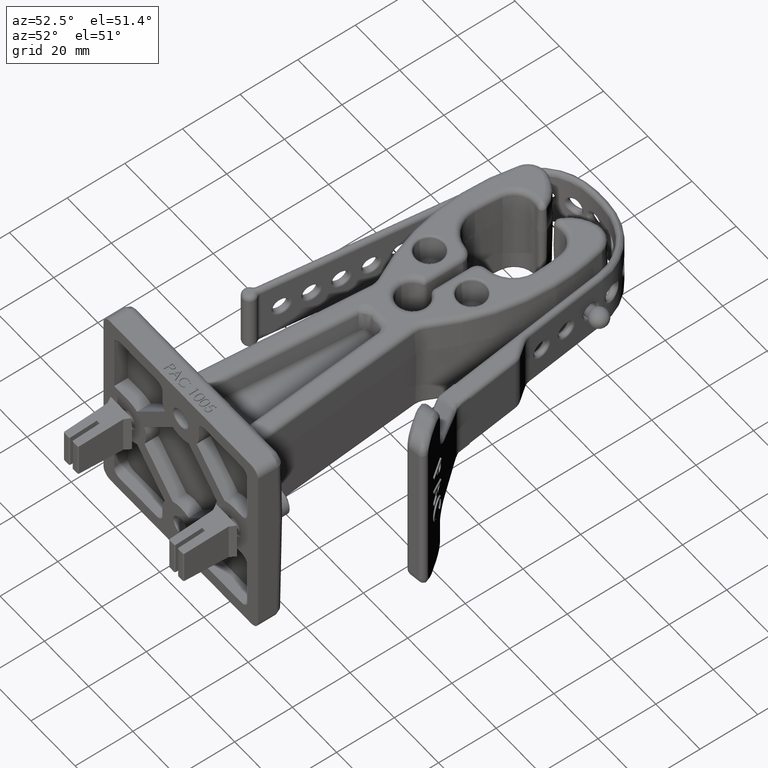
[diagram: clean part render]
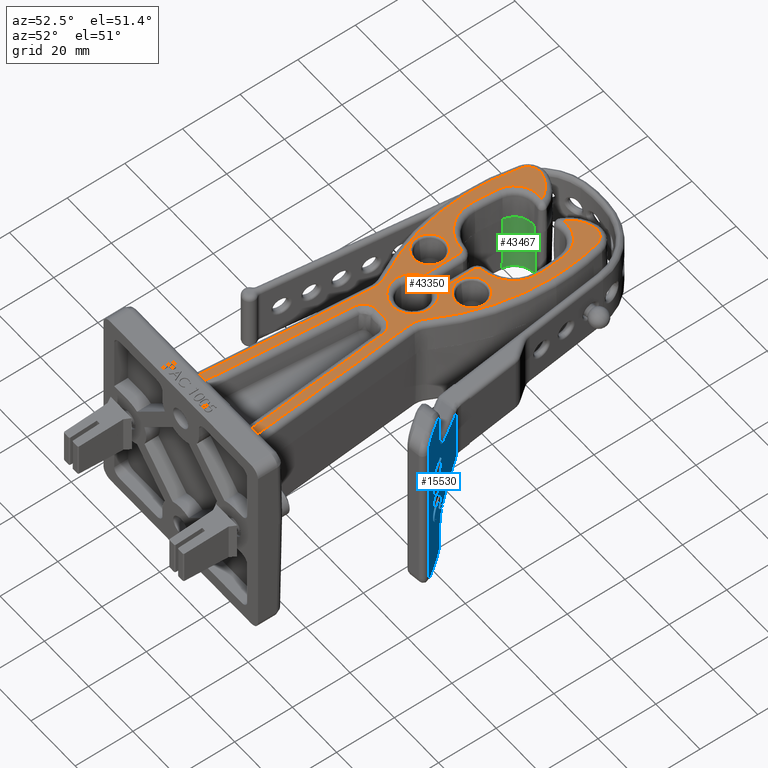
[diagram: same view with three faces highlighted in distinct colors, each labeled with its STEP entity id]
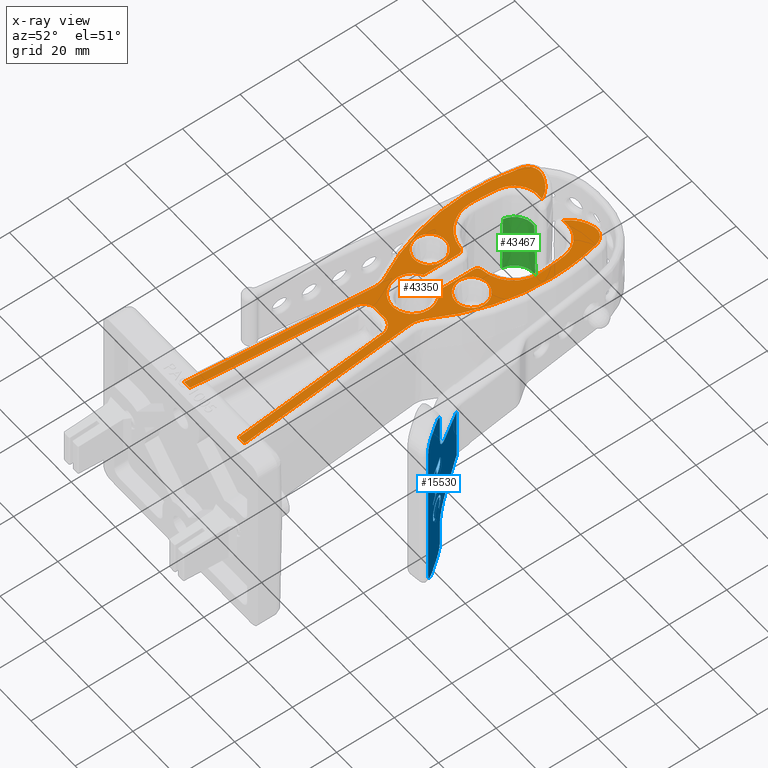
[diagram: x-ray of the same camera — body ghosted, the three highlighted faces saturated]
A machine part, auxiliary view with three faces highlighted in distinct colors.
The next image is the same camera in x-ray (body ghosted, the three faces saturated) — at least one of them is partly hidden behind the body in this view.
Their STEP definitions:

[orange] entity #43350 — the highlighted planar face has unit normal (0, 0, 1).
#3088 = B_SPLINE_CURVE_WITH_KNOTS ( 'NONE', 3,
 ( #7041, #7069, #7070, #7071, #7072, #7073, #7074, #7075, #7076, #7077, #7078, #7079, #7080, #7081, #7082, #7083, #7084, #7085 ),
 .UNSPECIFIED., .F., .F.,
 ( 4, 2, 2, 2, 2, 2, 2, 2, 4 ),
 ( 0.0000000000000000000, 0.0008832751303238180200, 0.001766550260647636000, 0.002649825390971454200, 0.003533100521295272100, 0.004416375651619090400, 0.005299650781942908400, 0.006182925912266726300, 0.007066201042590544200 ),
 .UNSPECIFIED. ) ;
#3089 = B_SPLINE_CURVE_WITH_KNOTS ( 'NONE', 3,
 ( #7098, #7102, #7103, #7104, #7105, #7106, #7107, #7108, #7109, #7110, #7111, #7112, #7113, #7114, #7115, #7116, #7117, #7118 ),
 .UNSPECIFIED., .F., .F.,
 ( 4, 2, 2, 2, 2, 2, 2, 2, 4 ),
 ( 0.0000000000000000000, 0.0008832753938168801400, 0.001766550787633760300, 0.002649826181450640200, 0.003533101575267520500, 0.004416376969084400900, 0.005299652362901280400, 0.006182927756718160700, 0.007066203150535041100 ),
 .UNSPECIFIED. ) ;
#6763 = CARTESIAN_POINT ( 'NONE',  ( -2.111536965869974300, 4.000000000000000000, 0.6875000000000000000 ) ) ;
#6770 = DIRECTION ( 'NONE',  ( 0.0000000000000000000, 0.0000000000000000000, 1.000000000000000000 ) ) ;
#6771 = DIRECTION ( 'NONE',  ( 1.000000000000000000, 0.0000000000000000000, 0.0000000000000000000 ) ) ;
#6775 = CARTESIAN_POINT ( 'NONE',  ( -0.3750000000000003900, 3.187500000000000000, 0.6875000000000000000 ) ) ;
#6776 = DIRECTION ( 'NONE',  ( -0.0000000000000000000, -0.0000000000000000000, -1.000000000000000000 ) ) ;
#6777 = DIRECTION ( 'NONE',  ( 1.000000000000000000, 0.0000000000000000000, 0.0000000000000000000 ) ) ;
#6787 = CARTESIAN_POINT ( 'NONE',  ( 0.3750000000000003900, 3.187500000000000000, 0.6875000000000000000 ) ) ;
#6788 = DIRECTION ( 'NONE',  ( -0.0000000000000000000, -0.0000000000000000000, -1.000000000000000000 ) ) ;
#6789 = DIRECTION ( 'NONE',  ( 1.000000000000000000, 0.0000000000000000000, 0.0000000000000000000 ) ) ;
#6811 = CARTESIAN_POINT ( 'NONE',  ( 0.1562900550675330500, 3.919804638497599700, 0.6875000000000000000 ) ) ;
#6812 = CARTESIAN_POINT ( 'NONE',  ( -2.134256245050205600E-017, 2.670242139723871100, 0.6875000000000000000 ) ) ;
#6813 = DIRECTION ( 'NONE',  ( -0.0000000000000000000, -0.0000000000000000000, -1.000000000000000000 ) ) ;
#6814 = DIRECTION ( 'NONE',  ( 1.000000000000000000, 0.0000000000000000000, 0.0000000000000000000 ) ) ;
#6818 = DIRECTION ( 'NONE',  ( -0.0000000000000000000, -0.0000000000000000000, -1.000000000000000000 ) ) ;
#6819 = DIRECTION ( 'NONE',  ( 1.000000000000000000, 0.0000000000000000000, 0.0000000000000000000 ) ) ;
#6823 = CARTESIAN_POINT ( 'NONE',  ( -2.134256245050205600E-017, 2.670242139723871100, 0.6875000000000000000 ) ) ;
#6825 = DIRECTION ( 'NONE',  ( -0.0000000000000000000, -0.0000000000000000000, -1.000000000000000000 ) ) ;
#6826 = DIRECTION ( 'NONE',  ( 1.000000000000000000, 0.0000000000000000000, 0.0000000000000000000 ) ) ;
#6877 = CARTESIAN_POINT ( 'NONE',  ( -0.6540987040100976200, 2.410828602639468100, 0.6875000000000000000 ) ) ;
#6879 = DIRECTION ( 'NONE',  ( -0.0000000000000000000, -0.0000000000000000000, -1.000000000000000000 ) ) ;
#6880 = DIRECTION ( 'NONE',  ( 1.000000000000000000, 0.0000000000000000000, 0.0000000000000000000 ) ) ;
#7041 = CARTESIAN_POINT ( 'NONE',  ( -0.2480569621154988800, 2.068527962832613600, 0.6875000000000000000 ) ) ;
#7058 = CARTESIAN_POINT ( 'NONE',  ( -0.3750000000000003900, 3.187500000000000000, 0.6875000000000000000 ) ) ;
#7068 = CARTESIAN_POINT ( 'NONE',  ( 0.3750000000000003900, 3.187500000000000000, 0.6875000000000000000 ) ) ;
#7069 = CARTESIAN_POINT ( 'NONE',  ( -0.2470384072568040900, 2.080170098140727000, 0.6875000000000001100 ) ) ;
#7070 = CARTESIAN_POINT ( 'NONE',  ( -0.2448749650771728000, 2.091562331041372200, 0.6875000000000001100 ) ) ;
#7071 = CARTESIAN_POINT ( 'NONE',  ( -0.2382856030390458900, 2.113852950323051900, 0.6874999999999998900 ) ) ;
#7072 = CARTESIAN_POINT ( 'NONE',  ( -0.2338460703191283000, 2.124700522028554400, 0.6875000000000000000 ) ) ;
#7073 = CARTESIAN_POINT ( 'NONE',  ( -0.2230333870619047300, 2.145057923492977200, 0.6875000000000001100 ) ) ;
#7074 = CARTESIAN_POINT ( 'NONE',  ( -0.2166083969192564900, 2.154708111385146700, 0.6875000000000000000 ) ) ;
#7075 = CARTESIAN_POINT ( 'NONE',  ( -0.2017673849801850900, 2.172716517659211400, 0.6875000000000001100 ) ) ;
#7076 = CARTESIAN_POINT ( 'NONE',  ( -0.1935621164329080500, 2.180830839839421800, 0.6875000000000000000 ) ) ;
#7077 = CARTESIAN_POINT ( 'NONE',  ( -0.1756350862996201000, 2.195339858016586400, 0.6875000000000001100 ) ) ;
#7078 = CARTESIAN_POINT ( 'NONE',  ( -0.1657885365099525900, 2.201787639832026400, 0.6875000000000001100 ) ) ;
#7079 = CARTESIAN_POINT ( 'NONE',  ( -0.1452449001492936400, 2.212444228721693200, 0.6875000000000001100 ) ) ;
#7080 = CARTESIAN_POINT ( 'NONE',  ( -0.1345392894291919100, 2.216699187184756300, 0.6875000000000001100 ) ) ;
#7081 = CARTESIAN_POINT ( 'NONE',  ( -0.1122597774505094800, 2.223060686625257400, 0.6875000000000001100 ) ) ;
#7082 = CARTESIAN_POINT ( 'NONE',  ( -0.1006915836236832000, 2.225130398121218700, 0.6875000000000001100 ) ) ;
#7083 = CARTESIAN_POINT ( 'NONE',  ( -0.07770635620340794700, 2.226911464231396300, 0.6875000000000000000 ) ) ;
#7084 = CARTESIAN_POINT ( 'NONE',  ( -0.06616129990272198700, 2.226666747876246100, 0.6875000000000000000 ) ) ;
#7085 = CARTESIAN_POINT ( 'NONE',  ( -0.05456184877679444400, 2.225244521168029600, 0.6875000000000000000 ) ) ;
#7086 = CARTESIAN_POINT ( 'NONE',  ( -0.6540987040100974000, -0.04050872248899941400, 0.6875000000000000000 ) ) ;
#7087 = DIRECTION ( 'NONE',  ( 1.000000000000000000, 9.106159978880883600E-017, -0.0000000000000000000 ) ) ;
#7088 = CARTESIAN_POINT ( 'NONE',  ( -0.2474773268165645400, 2.075153224615960300, 0.6875000000000000000 ) ) ;
#7089 = DIRECTION ( 'NONE',  ( 0.08715574274765843000, 0.9961946980917454300, -0.0000000000000000000 ) ) ;
#7090 = CARTESIAN_POINT ( 'NONE',  ( -0.5445805184386430800, -0.1390601691458154800, 0.6875000000000000000 ) ) ;
#7091 = DIRECTION ( 'NONE',  ( -0.08715574274765848500, -0.9961946980917454300, 0.0000000000000000000 ) ) ;
#7092 = CARTESIAN_POINT ( 'NONE',  ( -2.134256245050205600E-017, 2.670242139723871100, 0.6875000000000000000 ) ) ;
#7093 = DIRECTION ( 'NONE',  ( -0.0000000000000000000, -0.0000000000000000000, -1.000000000000000000 ) ) ;
#7094 = DIRECTION ( 'NONE',  ( 1.000000000000000000, 0.0000000000000000000, 0.0000000000000000000 ) ) ;
#7095 = CARTESIAN_POINT ( 'NONE',  ( 0.5628055406711990300, 4.375963978217993300, 0.6875000000000000000 ) ) ;
#7096 = DIRECTION ( 'NONE',  ( -0.0000000000000000000, -0.0000000000000000000, -1.000000000000000000 ) ) ;
#7097 = DIRECTION ( 'NONE',  ( 1.000000000000000000, 0.0000000000000000000, 0.0000000000000000000 ) ) ;
#7098 = CARTESIAN_POINT ( 'NONE',  ( 0.05456184877684894900, 2.225244521168036300, 0.6875000000000000000 ) ) ;
#7099 = DIRECTION ( 'NONE',  ( 0.0000000000000000000, 0.0000000000000000000, 1.000000000000000000 ) ) ;
#7100 = DIRECTION ( 'NONE',  ( 1.000000000000000000, 0.0000000000000000000, 0.0000000000000000000 ) ) ;
#7101 = CARTESIAN_POINT ( 'NONE',  ( 0.6540987040100976200, 2.410828602639468100, 0.6875000000000000000 ) ) ;
#7102 = CARTESIAN_POINT ( 'NONE',  ( 0.06616158686195496000, 2.226666783060818200, 0.6875000000000001100 ) ) ;
#7103 = CARTESIAN_POINT ( 'NONE',  ( 0.07775472261409795100, 2.226917240756869400, 0.6875000000000001100 ) ) ;
#7104 = CARTESIAN_POINT ( 'NONE',  ( 0.1009279466116898000, 2.225102440903034700, 0.6874999999999998900 ) ) ;
#7105 = CARTESIAN_POINT ( 'NONE',  ( 0.1124611448270072900, 2.223013312703956000, 0.6875000000000000000 ) ) ;
#7106 = CARTESIAN_POINT ( 'NONE',  ( 0.1346206898300220700, 2.216665692051573700, 0.6875000000000001100 ) ) ;
#7107 = CARTESIAN_POINT ( 'NONE',  ( 0.1453951110684186500, 2.212385643863604500, 0.6875000000000000000 ) ) ;
#7108 = CARTESIAN_POINT ( 'NONE',  ( 0.1660937499293982100, 2.201609552719202800, 0.6875000000000001100 ) ) ;
#7109 = CARTESIAN_POINT ( 'NONE',  ( 0.1757356287004434600, 2.195268990802882400, 0.6875000000000000000 ) ) ;
#7110 = CARTESIAN_POINT ( 'NONE',  ( 0.1936523214095640900, 2.180747215631516000, 0.6875000000000001100 ) ) ;
#7111 = CARTESIAN_POINT ( 'NONE',  ( 0.2020049863642647800, 2.172454965852428400, 0.6875000000000001100 ) ) ;
#7112 = CARTESIAN_POINT ( 'NONE',  ( 0.2166968977813432400, 2.154573363583470500, 0.6875000000000001100 ) ) ;
#7113 = CARTESIAN_POINT ( 'NONE',  ( 0.2230830608064057500, 2.144985259177406300, 0.6875000000000001100 ) ) ;
#7114 = CARTESIAN_POINT ( 'NONE',  ( 0.2339342426334772300, 2.124513392498554400, 0.6875000000000001100 ) ) ;
#7115 = CARTESIAN_POINT ( 'NONE',  ( 0.2383620501835811700, 2.113627563018395600, 0.6875000000000001100 ) ) ;
#7116 = CARTESIAN_POINT ( 'NONE',  ( 0.2448793619497797200, 2.091513823602575000, 0.6875000000000000000 ) ) ;
#7117 = CARTESIAN_POINT ( 'NONE',  ( 0.2470384323143158800, 2.080169811732058600, 0.6875000000000000000 ) ) ;
#7118 = CARTESIAN_POINT ( 'NONE',  ( 0.2480569621154991300, 2.068527962832613600, 0.6875000000000000000 ) ) ;
#7119 = CARTESIAN_POINT ( 'NONE',  ( 0.4400749348838775000, -0.1262475089801493000, 0.6875000000000000000 ) ) ;
#7120 = DIRECTION ( 'NONE',  ( 0.08715574274765837400, -0.9961946980917454300, -0.0000000000000000000 ) ) ;
#7121 = CARTESIAN_POINT ( 'NONE',  ( -0.6540987040100974000, -0.04050872248899914400, 0.6875000000000000000 ) ) ;
#7122 = DIRECTION ( 'NONE',  ( 1.000000000000000000, 9.106159978880883600E-017, -0.0000000000000000000 ) ) ;
#7123 = CARTESIAN_POINT ( 'NONE',  ( 0.3140834337984136900, 2.495533563926007200, 0.6875000000000000000 ) ) ;
#7124 = DIRECTION ( 'NONE',  ( -0.08715574274765848500, 0.9961946980917454300, -0.0000000000000000000 ) ) ;
#7125 = CARTESIAN_POINT ( 'NONE',  ( -2.111536965869974300, 4.000000000000000000, 0.6875000000000000000 ) ) ;
#7126 = DIRECTION ( 'NONE',  ( -0.0000000000000000000, -0.0000000000000000000, -1.000000000000000000 ) ) ;
#7127 = DIRECTION ( 'NONE',  ( 1.000000000000000000, -1.648975180434632100E-015, 0.0000000000000000000 ) ) ;
#7128 = CARTESIAN_POINT ( 'NONE',  ( 0.5039400744896566100, 4.627521360705028300, 0.6875000000000000000 ) ) ;
#7129 = DIRECTION ( 'NONE',  ( 0.0000000000000000000, 0.0000000000000000000, 1.000000000000000000 ) ) ;
#7130 = DIRECTION ( 'NONE',  ( 1.000000000000000000, 0.0000000000000000000, 0.0000000000000000000 ) ) ;
#7131 = CARTESIAN_POINT ( 'NONE',  ( 0.2553476726425473200, 4.251692925097636100, 0.6875000000000000000 ) ) ;
#7132 = DIRECTION ( 'NONE',  ( 0.0000000000000000000, 0.0000000000000000000, 1.000000000000000000 ) ) ;
#7133 = DIRECTION ( 'NONE',  ( 1.000000000000000000, 0.0000000000000000000, 0.0000000000000000000 ) ) ;
#7134 = CARTESIAN_POINT ( 'NONE',  ( -0.9172648044044904300, 4.433239071890198200, 0.6875000000000000000 ) ) ;
#7135 = DIRECTION ( 'NONE',  ( 0.9916397673933155000, 0.1290370943726300800, -0.0000000000000000000 ) ) ;
#7136 = CARTESIAN_POINT ( 'NONE',  ( -2.848041513357935100, 3.841773739148662600, 0.6875000000000000000 ) ) ;
#7137 = DIRECTION ( 'NONE',  ( 0.0000000000000000000, 0.0000000000000000000, 1.000000000000000000 ) ) ;
#7138 = DIRECTION ( 'NONE',  ( 1.000000000000000000, 0.0000000000000000000, 0.0000000000000000000 ) ) ;
#7139 = CARTESIAN_POINT ( 'NONE',  ( 0.1562900550675330500, 3.919804638497599700, 0.6875000000000000000 ) ) ;
#7140 = DIRECTION ( 'NONE',  ( -0.0000000000000000000, -0.0000000000000000000, -1.000000000000000000 ) ) ;
#7141 = DIRECTION ( 'NONE',  ( 1.000000000000000000, 1.648975180434632300E-015, 0.0000000000000000000 ) ) ;
#7142 = CARTESIAN_POINT ( 'NONE',  ( -2.134256245050205600E-017, 2.670242139723871100, 0.6875000000000000000 ) ) ;
#7143 = DIRECTION ( 'NONE',  ( -0.0000000000000000000, -0.0000000000000000000, -1.000000000000000000 ) ) ;
#7144 = DIRECTION ( 'NONE',  ( 1.000000000000000000, 4.087887324681773300E-014, 0.0000000000000000000 ) ) ;
#7145 = CARTESIAN_POINT ( 'NONE',  ( 0.2003826873328529700, 3.399414645497297100, 0.6875000000000000000 ) ) ;
#7146 = DIRECTION ( 'NONE',  ( -0.0000000000000000000, -0.0000000000000000000, -1.000000000000000000 ) ) ;
#7147 = DIRECTION ( 'NONE',  ( 1.000000000000000000, -3.232680718213454100E-014, 0.0000000000000000000 ) ) ;
#7148 = CARTESIAN_POINT ( 'NONE',  ( -0.1562900550675330500, 3.919804638497599700, 0.6875000000000000000 ) ) ;
#7149 = DIRECTION ( 'NONE',  ( -0.0000000000000000000, -0.0000000000000000000, -1.000000000000000000 ) ) ;
#7150 = DIRECTION ( 'NONE',  ( 1.000000000000000000, 0.0000000000000000000, 0.0000000000000000000 ) ) ;
#7151 = CARTESIAN_POINT ( 'NONE',  ( 2.848041513357935100, 3.841773739148662600, 0.6875000000000000000 ) ) ;
#7152 = DIRECTION ( 'NONE',  ( 0.0000000000000000000, 0.0000000000000000000, 1.000000000000000000 ) ) ;
#7153 = DIRECTION ( 'NONE',  ( 1.000000000000000000, 0.0000000000000000000, 0.0000000000000000000 ) ) ;
#7154 = CARTESIAN_POINT ( 'NONE',  ( -0.2003826873328529700, 3.399414645497297100, 0.6875000000000000000 ) ) ;
#7155 = DIRECTION ( 'NONE',  ( -0.0000000000000000000, -0.0000000000000000000, -1.000000000000000000 ) ) ;
#7156 = DIRECTION ( 'NONE',  ( 1.000000000000000000, 1.197289154893872100E-015, 0.0000000000000000000 ) ) ;
#7157 = CARTESIAN_POINT ( 'NONE',  ( 0.1344669367701897800, 2.410828602639470300, 0.6875000000000000000 ) ) ;
#7158 = DIRECTION ( 'NONE',  ( 2.499448244596570200E-015, -1.000000000000000000, -0.0000000000000000000 ) ) ;
#7159 = CARTESIAN_POINT ( 'NONE',  ( -0.1344669367701874200, 3.399414645497297100, 0.6875000000000000000 ) ) ;
#7160 = DIRECTION ( 'NONE',  ( 2.499448244596570200E-015, 1.000000000000000000, -0.0000000000000000000 ) ) ;
#7161 = CARTESIAN_POINT ( 'NONE',  ( -0.2553476726425473200, 4.251692925097636100, 0.6875000000000000000 ) ) ;
#7162 = DIRECTION ( 'NONE',  ( -0.0000000000000000000, -0.0000000000000000000, -1.000000000000000000 ) ) ;
#7163 = DIRECTION ( 'NONE',  ( 1.000000000000000000, 0.0000000000000000000, 0.0000000000000000000 ) ) ;
#7164 = CARTESIAN_POINT ( 'NONE',  ( -0.5628055406711990300, 4.375963978217993300, 0.6875000000000000000 ) ) ;
#7165 = DIRECTION ( 'NONE',  ( 0.0000000000000000000, 0.0000000000000000000, 1.000000000000000000 ) ) ;
#7166 = DIRECTION ( 'NONE',  ( 1.000000000000000000, 0.0000000000000000000, 0.0000000000000000000 ) ) ;
#7167 = CARTESIAN_POINT ( 'NONE',  ( -0.5039400744896566100, 4.627521360705028300, 0.6875000000000000000 ) ) ;
#7168 = DIRECTION ( 'NONE',  ( -0.0000000000000000000, -0.0000000000000000000, -1.000000000000000000 ) ) ;
#7169 = DIRECTION ( 'NONE',  ( 1.000000000000000000, -1.648975180434632300E-015, 0.0000000000000000000 ) ) ;
#7170 = CARTESIAN_POINT ( 'NONE',  ( -0.1514469102210863600, 4.572305151036839100, 0.6875000000000000000 ) ) ;
#7171 = DIRECTION ( 'NONE',  ( 0.9916397673933155000, -0.1290370943726300800, -0.0000000000000000000 ) ) ;
#7172 = CARTESIAN_POINT ( 'NONE',  ( 2.111536965869974300, 4.000000000000000000, 0.6875000000000000000 ) ) ;
#7173 = DIRECTION ( 'NONE',  ( 0.0000000000000000000, 0.0000000000000000000, 1.000000000000000000 ) ) ;
#7174 = DIRECTION ( 'NONE',  ( 1.000000000000000000, 0.0000000000000000000, 0.0000000000000000000 ) ) ;
#7175 = CARTESIAN_POINT ( 'NONE',  ( -0.6540987040100976200, 2.410828602639468100, 0.6875000000000000000 ) ) ;
#7176 = DIRECTION ( 'NONE',  ( 0.0000000000000000000, 0.0000000000000000000, 1.000000000000000000 ) ) ;
#7177 = DIRECTION ( 'NONE',  ( 1.000000000000000000, 0.0000000000000000000, 0.0000000000000000000 ) ) ;
#7179 = DIRECTION ( 'NONE',  ( 0.0000000000000000000, 0.0000000000000000000, 1.000000000000000000 ) ) ;
#7180 = DIRECTION ( 'NONE',  ( 1.000000000000000000, 0.0000000000000000000, 0.0000000000000000000 ) ) ;
#7182 = DIRECTION ( 'NONE',  ( -0.0000000000000000000, -0.0000000000000000000, -1.000000000000000000 ) ) ;
#7183 = DIRECTION ( 'NONE',  ( 1.000000000000000000, 0.0000000000000000000, 0.0000000000000000000 ) ) ;
#7374 = CIRCLE ( 'NONE', #24195, 2.858364296272585500 ) ;
#7376 = CIRCLE ( 'NONE', #24192, 0.2161353491880443300 ) ;
#7380 = CIRCLE ( 'NONE', #24199, 0.2161353491880443100 ) ;
#7389 = CIRCLE ( 'NONE', #24207, 0.4563388856397709300 ) ;
#7392 = CIRCLE ( 'NONE', #24210, 0.2828388856397720500 ) ;
#7395 = CIRCLE ( 'NONE', #24208, 0.2828388856397720500 ) ;
#7401 = CIRCLE ( 'NONE', #24213, 0.3313388856397718200 ) ;
#7490 = LINE ( 'NONE', #7086, #7492 ) ;
#7492 = VECTOR ( 'NONE', #7087, 39.37007874015748100 ) ;
#7498 = LINE ( 'NONE', #7088, #7499 ) ;
#7499 = VECTOR ( 'NONE', #7089, 39.37007874015748100 ) ;
#7500 = LINE ( 'NONE', #7090, #7501 ) ;
#7501 = VECTOR ( 'NONE', #7091, 39.37007874015748900 ) ;
#7502 = LINE ( 'NONE', #7119, #7505 ) ;
#7503 = CIRCLE ( 'NONE', #24250, 0.2161353491880443100 ) ;
#7504 = CIRCLE ( 'NONE', #24253, 0.2161353491880443300 ) ;
#7505 = VECTOR ( 'NONE', #7120, 39.37007874015748100 ) ;
#7506 = CIRCLE ( 'NONE', #24254, 0.4483300969847015500 ) ;
#7507 = LINE ( 'NONE', #7121, #7508 ) ;
#7508 = VECTOR ( 'NONE', #7122, 39.37007874015748100 ) ;
#7509 = LINE ( 'NONE', #7123, #7510 ) ;
#7510 = VECTOR ( 'NONE', #7124, 39.37007874015748900 ) ;
#7511 = LINE ( 'NONE', #7134, #7513 ) ;
#7512 = CIRCLE ( 'NONE', #24256, 0.3313388856397718200 ) ;
#7513 = VECTOR ( 'NONE', #7135, 39.37007874015748100 ) ;
#7514 = CIRCLE ( 'NONE', #24252, 0.4270140895559804700 ) ;
#7515 = CIRCLE ( 'NONE', #24255, 2.858364296272585500 ) ;
#7516 = CIRCLE ( 'NONE', #24258, 0.1686611143602278800 ) ;
#7517 = CIRCLE ( 'NONE', #24257, 0.3313388856397717600 ) ;
#7518 = LINE ( 'NONE', #7157, #7522 ) ;
#7519 = CIRCLE ( 'NONE', #24259, 3.461683623650875700 ) ;
#7520 = CIRCLE ( 'NONE', #24260, 0.4563388856397709300 ) ;
#7521 = CIRCLE ( 'NONE', #24261, 0.2828388856397720500 ) ;
#7522 = VECTOR ( 'NONE', #7158, 39.37007874015748100 ) ;
#7523 = CIRCLE ( 'NONE', #24262, 0.06591575056266568700 ) ;
#7524 = CIRCLE ( 'NONE', #24263, 0.4563388856397709300 ) ;
#7525 = LINE ( 'NONE', #7159, #7526 ) ;
#7526 = VECTOR ( 'NONE', #7160, 39.37007874015748100 ) ;
#7527 = LINE ( 'NONE', #7170, #7529 ) ;
#7528 = CIRCLE ( 'NONE', #24264, 3.461683623650875200 ) ;
#7529 = VECTOR ( 'NONE', #7171, 39.37007874015748100 ) ;
#7530 = CIRCLE ( 'NONE', #24265, 0.06591575056266568700 ) ;
#7531 = CIRCLE ( 'NONE', #24266, 0.3313388856397717600 ) ;
#7533 = CIRCLE ( 'NONE', #24268, 0.4270140895559804700 ) ;
#7534 = CIRCLE ( 'NONE', #24267, 0.1686611143602279600 ) ;
#7536 = CIRCLE ( 'NONE', #24269, 2.858364296272584600 ) ;
#7537 = CIRCLE ( 'NONE', #24270, 0.3313388856397718200 ) ;
#8462 = FACE_BOUND ( 'NONE', #11772, .T. ) ;
#8469 = FACE_BOUND ( 'NONE', #11776, .T. ) ;
#10819 = CARTESIAN_POINT ( 'NONE',  ( -0.5359583840820918400, -0.04050872248899926200, 0.6875000000000000000 ) ) ;
#10833 = CARTESIAN_POINT ( 'NONE',  ( -0.5911353491880446700, 3.187500000000000000, 0.6875000000000000000 ) ) ;
#10834 = CARTESIAN_POINT ( 'NONE',  ( -0.1588646508119560300, 3.187500000000000000, 0.6875000000000000000 ) ) ;
#10837 = CARTESIAN_POINT ( 'NONE',  ( 0.1588646508119560300, 3.187500000000000000, 0.6875000000000000000 ) ) ;
#10838 = CARTESIAN_POINT ( 'NONE',  ( 0.5911353491880446700, 3.187500000000000000, 0.6875000000000000000 ) ) ;
#10843 = CARTESIAN_POINT ( 'NONE',  ( 0.7468273304026111800, 4.000000000000000000, 0.6875000000000000000 ) ) ;
#10844 = CARTESIAN_POINT ( 'NONE',  ( 0.3668109569432154200, 2.575908000270551200, 0.6875000000000000000 ) ) ;
#10845 = CARTESIAN_POINT ( 'NONE',  ( 0.6126289407073040000, 3.919804638497599700, 0.6875000000000000000 ) ) ;
#10846 = CARTESIAN_POINT ( 'NONE',  ( 0.1948175879568360400, 3.465095052325929200, 0.6875000000000000000 ) ) ;
#10849 = CARTESIAN_POINT ( 'NONE',  ( -0.2828388856397721100, 2.670242139723871100, 0.6875000000000000000 ) ) ;
#10850 = CARTESIAN_POINT ( 'NONE',  ( -0.1344669367701886200, 2.919072359242301100, 0.6875000000000000000 ) ) ;
#10853 = CARTESIAN_POINT ( 'NONE',  ( 0.2828388856397720500, 2.670242139723871100, 0.6875000000000000000 ) ) ;
#10855 = CARTESIAN_POINT ( 'NONE',  ( -0.3227598183703258000, 2.410828602639468100, 0.6875000000000000000 ) ) ;
#10856 = CARTESIAN_POINT ( 'NONE',  ( -0.3240206628641296200, 2.381950515960352000, 0.6875000000000000000 ) ) ;
#10915 = CARTESIAN_POINT ( 'NONE',  ( -0.4325737630414320800, -0.04050872248899941400, 0.6875000000000000000 ) ) ;
#10916 = CARTESIAN_POINT ( 'NONE',  ( -0.2480569621154988800, 2.068527962832613600, 0.6875000000000000000 ) ) ;
#10917 = CARTESIAN_POINT ( 'NONE',  ( -0.05456184877679444400, 2.225244521168029600, 0.6875000000000000000 ) ) ;
#10918 = CARTESIAN_POINT ( 'NONE',  ( 0.05456184877684894900, 2.225244521168036300, 0.6875000000000000000 ) ) ;
#10919 = CARTESIAN_POINT ( 'NONE',  ( 0.2480569621154991300, 2.068527962832613600, 0.6875000000000000000 ) ) ;
#10920 = CARTESIAN_POINT ( 'NONE',  ( 0.4325737630414321900, -0.04050872248899919200, 0.6875000000000000000 ) ) ;
#10921 = CARTESIAN_POINT ( 'NONE',  ( 0.5359583840820920700, -0.04050872248900051100, 0.6875000000000000000 ) ) ;
#10922 = CARTESIAN_POINT ( 'NONE',  ( 0.3240206628641297300, 2.381950515960352500, 0.6875000000000000000 ) ) ;
#10923 = CARTESIAN_POINT ( 'NONE',  ( 0.6679467482286550700, 4.666870852014365100, 0.6875000000000000000 ) ) ;
#10924 = CARTESIAN_POINT ( 'NONE',  ( 0.4655108088077329300, 4.791746094032200500, 0.6875000000000000000 ) ) ;
#10925 = CARTESIAN_POINT ( 'NONE',  ( 0.1859672658740029500, 4.576797111259321800, 0.6875000000000000000 ) ) ;
#10926 = CARTESIAN_POINT ( 'NONE',  ( 0.2125926655869245000, 4.580261740581819100, 0.6875000000000000000 ) ) ;
#10927 = CARTESIAN_POINT ( 'NONE',  ( 0.5838333828935029500, 4.295081809595062700, 0.6875000000000000000 ) ) ;
#10928 = CARTESIAN_POINT ( 'NONE',  ( 0.6124750985627320800, 3.931653040846918100, 0.6875000000000000000 ) ) ;
#10929 = CARTESIAN_POINT ( 'NONE',  ( 0.1344669367701873700, 3.399414645497297100, 0.6875000000000000000 ) ) ;
#10930 = CARTESIAN_POINT ( 'NONE',  ( 0.1344669367701881400, 2.919072359242301600, 0.6875000000000000000 ) ) ;
#10931 = CARTESIAN_POINT ( 'NONE',  ( -0.1344669367701872800, 3.399414645497297100, 0.6875000000000000000 ) ) ;
#10932 = CARTESIAN_POINT ( 'NONE',  ( -0.1948175879568361000, 3.465095052325929200, 0.6875000000000000000 ) ) ;
#10933 = CARTESIAN_POINT ( 'NONE',  ( -0.6124750985627320800, 3.931653040846917700, 0.6875000000000000000 ) ) ;
#10934 = CARTESIAN_POINT ( 'NONE',  ( -0.5838333828935028400, 4.295081809595062700, 0.6875000000000000000 ) ) ;
#10935 = CARTESIAN_POINT ( 'NONE',  ( -0.2125926655869240200, 4.580261740581818200, 0.6875000000000000000 ) ) ;
#10936 = CARTESIAN_POINT ( 'NONE',  ( -0.1859672658740030000, 4.576797111259321800, 0.6875000000000000000 ) ) ;
#10937 = CARTESIAN_POINT ( 'NONE',  ( -0.4655108088077323200, 4.791746094032204100, 0.6875000000000000000 ) ) ;
#10938 = CARTESIAN_POINT ( 'NONE',  ( -0.6679467482286554100, 4.666870852014364200, 0.6875000000000000000 ) ) ;
#10939 = CARTESIAN_POINT ( 'NONE',  ( -0.3668109569432155300, 2.575908000270550800, 0.6875000000000000000 ) ) ;
#11772 = EDGE_LOOP ( 'NONE', ( #48257, #48258 ) ) ;
#11776 = EDGE_LOOP ( 'NONE', ( #48259, #48260 ) ) ;
#11777 = EDGE_LOOP ( 'NONE', ( #48261, #48262, #48263, #48264, #48265, #48266, #48267, #48268, #48269, #48270, #48271, #48272, #48273, #48274, #48275, #48276, #48277, #48278, #48279, #48280, #48281, #48282, #48283, #48284, #48285, #48286, #48287, #48288, #48289, #48290, #48291, #48292, #48293, #48294, #48295 ) ) ;
#22277 = EDGE_CURVE ( 'NONE', #23423, #23422, #7374, .T. ) ;
#22279 = EDGE_CURVE ( 'NONE', #23412, #23413, #7376, .T. ) ;
#22283 = EDGE_CURVE ( 'NONE', #23416, #23417, #7380, .T. ) ;
#22291 = EDGE_CURVE ( 'NONE', #23424, #23425, #7389, .T. ) ;
#22293 = EDGE_CURVE ( 'NONE', #23432, #23428, #7392, .T. ) ;
#22295 = EDGE_CURVE ( 'NONE', #23428, #23429, #7395, .T. ) ;
#22302 = EDGE_CURVE ( 'NONE', #23434, #23435, #7401, .T. ) ;
#22374 = EDGE_CURVE ( 'NONE', #23495, #23496, #3088, .T. ) ;
#22375 = EDGE_CURVE ( 'NONE', #23398, #23494, #7490, .T. ) ;
#22376 = EDGE_CURVE ( 'NONE', #23494, #23495, #7498, .T. ) ;
#22377 = EDGE_CURVE ( 'NONE', #23435, #23398, #7500, .T. ) ;
#22378 = EDGE_CURVE ( 'NONE', #23417, #23416, #7503, .T. ) ;
#22379 = EDGE_CURVE ( 'NONE', #23413, #23412, #7504, .T. ) ;
#22380 = EDGE_CURVE ( 'NONE', #23496, #23497, #7506, .T. ) ;
#22381 = EDGE_CURVE ( 'NONE', #23497, #23498, #3089, .T. ) ;
#22382 = EDGE_CURVE ( 'NONE', #23498, #23499, #7502, .T. ) ;
#22383 = EDGE_CURVE ( 'NONE', #23499, #23500, #7507, .T. ) ;
#22384 = EDGE_CURVE ( 'NONE', #23500, #23501, #7509, .T. ) ;
#22385 = EDGE_CURVE ( 'NONE', #23501, #23423, #7512, .T. ) ;
#22386 = EDGE_CURVE ( 'NONE', #23503, #23504, #7514, .T. ) ;
#22387 = EDGE_CURVE ( 'NONE', #23422, #23502, #7515, .T. ) ;
#22388 = EDGE_CURVE ( 'NONE', #23504, #23505, #7511, .T. ) ;
#22389 = EDGE_CURVE ( 'NONE', #23502, #23503, #7516, .T. ) ;
#22390 = EDGE_CURVE ( 'NONE', #23505, #23506, #7517, .T. ) ;
#22391 = EDGE_CURVE ( 'NONE', #23506, #23507, #7519, .T. ) ;
#22392 = EDGE_CURVE ( 'NONE', #23507, #23424, #7520, .T. ) ;
#22393 = EDGE_CURVE ( 'NONE', #23509, #23432, #7521, .T. ) ;
#22394 = EDGE_CURVE ( 'NONE', #23425, #23508, #7523, .T. ) ;
#22395 = EDGE_CURVE ( 'NONE', #23511, #23512, #7524, .T. ) ;
#22396 = EDGE_CURVE ( 'NONE', #23508, #23509, #7518, .T. ) ;
#22397 = EDGE_CURVE ( 'NONE', #23429, #23510, #7525, .T. ) ;
#22398 = EDGE_CURVE ( 'NONE', #23512, #23513, #7528, .T. ) ;
#22399 = EDGE_CURVE ( 'NONE', #23510, #23511, #7530, .T. ) ;
#22400 = EDGE_CURVE ( 'NONE', #23513, #23514, #7531, .T. ) ;
#22401 = EDGE_CURVE ( 'NONE', #23514, #23515, #7527, .T. ) ;
#22402 = EDGE_CURVE ( 'NONE', #23515, #23516, #7533, .T. ) ;
#22403 = EDGE_CURVE ( 'NONE', #23516, #23517, #7534, .T. ) ;
#22404 = EDGE_CURVE ( 'NONE', #23517, #23518, #7536, .T. ) ;
#22405 = EDGE_CURVE ( 'NONE', #23518, #23434, #7537, .T. ) ;
#23398 = VERTEX_POINT ( 'NONE', #10819 ) ;
#23412 = VERTEX_POINT ( 'NONE', #10833 ) ;
#23413 = VERTEX_POINT ( 'NONE', #10834 ) ;
#23416 = VERTEX_POINT ( 'NONE', #10837 ) ;
#23417 = VERTEX_POINT ( 'NONE', #10838 ) ;
#23422 = VERTEX_POINT ( 'NONE', #10843 ) ;
#23423 = VERTEX_POINT ( 'NONE', #10844 ) ;
#23424 = VERTEX_POINT ( 'NONE', #10845 ) ;
#23425 = VERTEX_POINT ( 'NONE', #10846 ) ;
#23428 = VERTEX_POINT ( 'NONE', #10849 ) ;
#23429 = VERTEX_POINT ( 'NONE', #10850 ) ;
#23432 = VERTEX_POINT ( 'NONE', #10853 ) ;
#23434 = VERTEX_POINT ( 'NONE', #10855 ) ;
#23435 = VERTEX_POINT ( 'NONE', #10856 ) ;
#23494 = VERTEX_POINT ( 'NONE', #10915 ) ;
#23495 = VERTEX_POINT ( 'NONE', #10916 ) ;
#23496 = VERTEX_POINT ( 'NONE', #10917 ) ;
#23497 = VERTEX_POINT ( 'NONE', #10918 ) ;
#23498 = VERTEX_POINT ( 'NONE', #10919 ) ;
#23499 = VERTEX_POINT ( 'NONE', #10920 ) ;
#23500 = VERTEX_POINT ( 'NONE', #10921 ) ;
#23501 = VERTEX_POINT ( 'NONE', #10922 ) ;
#23502 = VERTEX_POINT ( 'NONE', #10923 ) ;
#23503 = VERTEX_POINT ( 'NONE', #10924 ) ;
#23504 = VERTEX_POINT ( 'NONE', #10925 ) ;
#23505 = VERTEX_POINT ( 'NONE', #10926 ) ;
#23506 = VERTEX_POINT ( 'NONE', #10927 ) ;
#23507 = VERTEX_POINT ( 'NONE', #10928 ) ;
#23508 = VERTEX_POINT ( 'NONE', #10929 ) ;
#23509 = VERTEX_POINT ( 'NONE', #10930 ) ;
#23510 = VERTEX_POINT ( 'NONE', #10931 ) ;
#23511 = VERTEX_POINT ( 'NONE', #10932 ) ;
#23512 = VERTEX_POINT ( 'NONE', #10933 ) ;
#23513 = VERTEX_POINT ( 'NONE', #10934 ) ;
#23514 = VERTEX_POINT ( 'NONE', #10935 ) ;
#23515 = VERTEX_POINT ( 'NONE', #10936 ) ;
#23516 = VERTEX_POINT ( 'NONE', #10937 ) ;
#23517 = VERTEX_POINT ( 'NONE', #10938 ) ;
#23518 = VERTEX_POINT ( 'NONE', #10939 ) ;
#24192 = AXIS2_PLACEMENT_3D ( 'NONE', #6775, #6776, #6777 ) ;
#24195 = AXIS2_PLACEMENT_3D ( 'NONE', #6763, #6770, #6771 ) ;
#24199 = AXIS2_PLACEMENT_3D ( 'NONE', #6787, #6788, #6789 ) ;
#24207 = AXIS2_PLACEMENT_3D ( 'NONE', #6811, #6813, #6814 ) ;
#24208 = AXIS2_PLACEMENT_3D ( 'NONE', #6823, #6825, #6826 ) ;
#24210 = AXIS2_PLACEMENT_3D ( 'NONE', #6812, #6818, #6819 ) ;
#24213 = AXIS2_PLACEMENT_3D ( 'NONE', #6877, #6879, #6880 ) ;
#24250 = AXIS2_PLACEMENT_3D ( 'NONE', #7068, #7093, #7094 ) ;
#24252 = AXIS2_PLACEMENT_3D ( 'NONE', #7095, #7129, #7130 ) ;
#24253 = AXIS2_PLACEMENT_3D ( 'NONE', #7058, #7096, #7097 ) ;
#24254 = AXIS2_PLACEMENT_3D ( 'NONE', #7092, #7099, #7100 ) ;
#24255 = AXIS2_PLACEMENT_3D ( 'NONE', #7125, #7132, #7133 ) ;
#24256 = AXIS2_PLACEMENT_3D ( 'NONE', #7101, #7126, #7127 ) ;
#24257 = AXIS2_PLACEMENT_3D ( 'NONE', #7131, #7140, #7141 ) ;
#24258 = AXIS2_PLACEMENT_3D ( 'NONE', #7128, #7137, #7138 ) ;
#24259 = AXIS2_PLACEMENT_3D ( 'NONE', #7136, #7143, #7144 ) ;
#24260 = AXIS2_PLACEMENT_3D ( 'NONE', #7139, #7146, #7147 ) ;
#24261 = AXIS2_PLACEMENT_3D ( 'NONE', #7142, #7149, #7150 ) ;
#24262 = AXIS2_PLACEMENT_3D ( 'NONE', #7145, #7152, #7153 ) ;
#24263 = AXIS2_PLACEMENT_3D ( 'NONE', #7148, #7155, #7156 ) ;
#24264 = AXIS2_PLACEMENT_3D ( 'NONE', #7151, #7162, #7163 ) ;
#24265 = AXIS2_PLACEMENT_3D ( 'NONE', #7154, #7165, #7166 ) ;
#24266 = AXIS2_PLACEMENT_3D ( 'NONE', #7161, #7168, #7169 ) ;
#24267 = AXIS2_PLACEMENT_3D ( 'NONE', #7167, #7176, #7177 ) ;
#24268 = AXIS2_PLACEMENT_3D ( 'NONE', #7164, #7173, #7174 ) ;
#24269 = AXIS2_PLACEMENT_3D ( 'NONE', #7172, #7179, #7180 ) ;
#24270 = AXIS2_PLACEMENT_3D ( 'NONE', #7175, #7182, #7183 ) ;
#24537 = AXIS2_PLACEMENT_3D ( 'NONE', #27321, #27329, #27330 ) ;
#25840 = FACE_OUTER_BOUND ( 'NONE', #11777, .T. ) ;
#27321 = CARTESIAN_POINT ( 'NONE',  ( -0.6540987040100976200, 2.410828602639468100, 0.6875000000000000000 ) ) ;
#27328 = PLANE ( 'NONE',  #24537 ) ;
#27329 = DIRECTION ( 'NONE',  ( 0.0000000000000000000, 0.0000000000000000000, 1.000000000000000000 ) ) ;
#27330 = DIRECTION ( 'NONE',  ( 1.000000000000000000, 0.0000000000000000000, -0.0000000000000000000 ) ) ;
#43350 = ADVANCED_FACE ( 'NONE', ( #8462, #8469, #25840 ), #27328, .T. ) ;
#48257 = ORIENTED_EDGE ( 'NONE', *, *, #22378, .T. ) ;
#48258 = ORIENTED_EDGE ( 'NONE', *, *, #22283, .T. ) ;
#48259 = ORIENTED_EDGE ( 'NONE', *, *, #22379, .T. ) ;
#48260 = ORIENTED_EDGE ( 'NONE', *, *, #22279, .T. ) ;
#48261 = ORIENTED_EDGE ( 'NONE', *, *, #22377, .T. ) ;
#48262 = ORIENTED_EDGE ( 'NONE', *, *, #22375, .T. ) ;
#48263 = ORIENTED_EDGE ( 'NONE', *, *, #22376, .T. ) ;
#48264 = ORIENTED_EDGE ( 'NONE', *, *, #22374, .T. ) ;
#48265 = ORIENTED_EDGE ( 'NONE', *, *, #22380, .T. ) ;
#48266 = ORIENTED_EDGE ( 'NONE', *, *, #22381, .T. ) ;
#48267 = ORIENTED_EDGE ( 'NONE', *, *, #22382, .T. ) ;
#48268 = ORIENTED_EDGE ( 'NONE', *, *, #22383, .T. ) ;
#48269 = ORIENTED_EDGE ( 'NONE', *, *, #22384, .T. ) ;
#48270 = ORIENTED_EDGE ( 'NONE', *, *, #22385, .T. ) ;
#48271 = ORIENTED_EDGE ( 'NONE', *, *, #22277, .T. ) ;
#48272 = ORIENTED_EDGE ( 'NONE', *, *, #22387, .T. ) ;
#48273 = ORIENTED_EDGE ( 'NONE', *, *, #22389, .T. ) ;
#48274 = ORIENTED_EDGE ( 'NONE', *, *, #22386, .T. ) ;
#48275 = ORIENTED_EDGE ( 'NONE', *, *, #22388, .T. ) ;
#48276 = ORIENTED_EDGE ( 'NONE', *, *, #22390, .T. ) ;
#48277 = ORIENTED_EDGE ( 'NONE', *, *, #22391, .T. ) ;
#48278 = ORIENTED_EDGE ( 'NONE', *, *, #22392, .T. ) ;
#48279 = ORIENTED_EDGE ( 'NONE', *, *, #22291, .T. ) ;
#48280 = ORIENTED_EDGE ( 'NONE', *, *, #22394, .T. ) ;
#48281 = ORIENTED_EDGE ( 'NONE', *, *, #22396, .T. ) ;
#48282 = ORIENTED_EDGE ( 'NONE', *, *, #22393, .T. ) ;
#48283 = ORIENTED_EDGE ( 'NONE', *, *, #22293, .T. ) ;
#48284 = ORIENTED_EDGE ( 'NONE', *, *, #22295, .T. ) ;
#48285 = ORIENTED_EDGE ( 'NONE', *, *, #22397, .T. ) ;
#48286 = ORIENTED_EDGE ( 'NONE', *, *, #22399, .T. ) ;
#48287 = ORIENTED_EDGE ( 'NONE', *, *, #22395, .T. ) ;
#48288 = ORIENTED_EDGE ( 'NONE', *, *, #22398, .T. ) ;
#48289 = ORIENTED_EDGE ( 'NONE', *, *, #22400, .T. ) ;
#48290 = ORIENTED_EDGE ( 'NONE', *, *, #22401, .T. ) ;
#48291 = ORIENTED_EDGE ( 'NONE', *, *, #22402, .T. ) ;
#48292 = ORIENTED_EDGE ( 'NONE', *, *, #22403, .T. ) ;
#48293 = ORIENTED_EDGE ( 'NONE', *, *, #22404, .T. ) ;
#48294 = ORIENTED_EDGE ( 'NONE', *, *, #22405, .T. ) ;
#48295 = ORIENTED_EDGE ( 'NONE', *, *, #22302, .T. ) ;

[blue] entity #15530 — the highlighted planar face has unit normal (0.796, 0.6053, -0).
#1405 = B_SPLINE_CURVE_WITH_KNOTS ( 'NONE', 3,
 ( #37641, #37648, #37649, #37650, #37651, #37652, #37653, #37654, #37655, #37656 ),
 .UNSPECIFIED., .F., .F.,
 ( 4, 2, 2, 2, 4 ),
 ( 0.0000000000000000000, 0.0008126799732532534500, 0.001219019959879879800, 0.001422189953193189900, 0.001625359946506499700 ),
 .UNSPECIFIED. ) ;
#1406 = B_SPLINE_CURVE_WITH_KNOTS ( 'NONE', 3,
 ( #37643, #37661, #37662, #37663, #37664, #37665, #37666, #37667, #37668, #37669, #37670, #37671, #37672, #37673 ),
 .UNSPECIFIED., .F., .F.,
 ( 4, 2, 2, 2, 2, 2, 4 ),
 ( 0.0000000000000000000, 0.0003032687662834103500, 0.0006065375325668207000, 0.001213075065133646600, 0.001819612597700472600, 0.002122881363983877400, 0.002426150130267282400 ),
 .UNSPECIFIED. ) ;
#1408 = B_SPLINE_CURVE_WITH_KNOTS ( 'NONE', 3,
 ( #37674, #37687, #37688, #37689, #37690, #37691, #37692, #37693, #37694, #37695, #37696, #37697, #37698, #37699 ),
 .UNSPECIFIED., .F., .F.,
 ( 4, 2, 2, 2, 2, 2, 4 ),
 ( 0.0000000000000000000, 0.0002954960673458801900, 0.0005909921346917603900, 0.001181984269383516900, 0.001772976404075273600, 0.002068472471421146500, 0.002363968538767019400 ),
 .UNSPECIFIED. ) ;
#1410 = B_SPLINE_CURVE_WITH_KNOTS ( 'NONE', 3,
 ( #37700, #37717, #37718, #37719, #37720, #37721 ),
 .UNSPECIFIED., .F., .F.,
 ( 4, 2, 4 ),
 ( 0.0000000000000000000, 0.0007259444559619952300, 0.001451888911923990500 ),
 .UNSPECIFIED. ) ;
#1413 = B_SPLINE_CURVE_WITH_KNOTS ( 'NONE', 3,
 ( #37790, #37802, #37803, #37804, #37805, #37806, #37807, #37808, #37809, #37810, #37811, #37812, #37813, #37814 ),
 .UNSPECIFIED., .F., .F.,
 ( 4, 2, 2, 2, 2, 2, 4 ),
 ( 0.0000000000000000000, 0.0003483692002371729400, 0.0006967384004743458700, 0.001393476800948675500, 0.002090215201423005300, 0.002438584401660162700, 0.002786953601897320200 ),
 .UNSPECIFIED. ) ;
#1414 = B_SPLINE_CURVE_WITH_KNOTS ( 'NONE', 3,
 ( #37793, #37820, #37821, #37822, #37823, #37824, #37825, #37826, #37827, #37828, #37829, #37830, #37831, #37832, #37833, #37834, #37835, #37836, #37837, #37838, #37839, #37840 ),
 .UNSPECIFIED., .F., .F.,
 ( 4, 2, 2, 2, 2, 2, 2, 2, 2, 2, 4 ),
 ( 0.0000000000000000000, 0.0003552380171553038300, 0.0007104760343106076600, 0.001420952068621209300, 0.002131428102931811400, 0.002841904137242412900, 0.003552380171553014800, 0.004262856205863616700, 0.004973332240174218600, 0.005328570257329520000, 0.005683808274484820600 ),
 .UNSPECIFIED. ) ;
#1416 = B_SPLINE_CURVE_WITH_KNOTS ( 'NONE', 3,
 ( #37819, #37866, #37867, #37868, #37869, #37870, #37871, #37872, #37873, #37874, #37875, #37876, #37877, #37878, #37879, #37880, #37881, #37882, #37883, #37884, #37885, #37886 ),
 .UNSPECIFIED., .F., .F.,
 ( 4, 1, 1, 1, 2, 2, 1, 1, 1, 2, 2, 2, 2, 4 ),
 ( 0.0000000000000000000, 0.1250000000000012800, 0.1875000000000084700, 0.2187500000000182900, 0.2343750000000152900, 0.2500000000000123200, 0.3749999999999558700, 0.4374999999999276100, 0.4687499999999135100, 0.4843749999999127900, 0.4999999999999120700, 0.6249999999999307200, 0.7499999999999494800, 1.000000000000000000 ),
 .UNSPECIFIED. ) ;
#1417 = B_SPLINE_CURVE_WITH_KNOTS ( 'NONE', 3,
 ( #37841, #37887, #37888, #37889, #37890, #37891, #37892, #37893, #37894, #37895, #37896, #37897, #37898, #37899 ),
 .UNSPECIFIED., .F., .F.,
 ( 4, 2, 2, 2, 2, 2, 4 ),
 ( 1.494784152325346300E-017, 0.0003772800218702283600, 0.0007545600437404417600, 0.001509120087480876600, 0.002263680131221311300, 0.002640960153091529800, 0.003018240174961748800 ),
 .UNSPECIFIED. ) ;
#1419 = B_SPLINE_CURVE_WITH_KNOTS ( 'NONE', 3,
 ( #37900, #37917, #37918, #37919, #37920, #37921, #37922, #37923, #37924, #37925, #37926, #37927, #37928, #37929, #37930, #37931 ),
 .UNSPECIFIED., .F., .F.,
 ( 4, 2, 2, 2, 2, 2, 2, 4 ),
 ( 0.0000000000000000000, 0.0004110218112012762000, 0.0008220436224025524100, 0.001233065433603828600, 0.001644087244805104800, 0.002466130867207657200, 0.002877152678408933200, 0.003288174489610209600 ),
 .UNSPECIFIED. ) ;
#1422 = B_SPLINE_CURVE_WITH_KNOTS ( 'NONE', 3,
 ( #37945, #37970, #37971, #37972, #37973, #37974, #37975, #37976, #37977, #37978, #37979, #37980, #37981, #37982 ),
 .UNSPECIFIED., .F., .F.,
 ( 4, 2, 2, 2, 2, 2, 4 ),
 ( 0.0000000000000000000, 0.0003308853136256658600, 0.0006617706272513317100, 0.001323541254502663400, 0.001985311881753995400, 0.002316197195379662000, 0.002647082509005328600 ),
 .UNSPECIFIED. ) ;
#1423 = B_SPLINE_CURVE_WITH_KNOTS ( 'NONE', 3,
 ( #37966, #37987, #37988, #37989, #37990, #37991, #37992, #37993, #37994, #37995, #37996, #37997, #37998, #37999, #38000, #38001, #38002, #38003, #38004, #38005, #38006, #38007 ),
 .UNSPECIFIED., .F., .F.,
 ( 4, 2, 2, 2, 2, 2, 2, 2, 2, 2, 4 ),
 ( 0.0000000000000000000, 0.0002923775943788215800, 0.0005847551887576431500, 0.001169510377515283000, 0.001754265566272922700, 0.002339020755030562200, 0.002923775943788202100, 0.003508531132545842400, 0.004093286321303481900, 0.004385663915682302300, 0.004678041510061122600 ),
 .UNSPECIFIED. ) ;
#1425 = B_SPLINE_CURVE_WITH_KNOTS ( 'NONE', 3,
 ( #38008, #38025, #38026, #38027, #38028, #38029, #38030, #38031, #38032, #38033, #38034, #38035, #38036, #38037, #38038, #38039, #38040, #38041, #38042, #38043, #38044, #38045 ),
 .UNSPECIFIED., .F., .F.,
 ( 4, 2, 2, 2, 2, 2, 2, 2, 2, 2, 4 ),
 ( 0.0000000000000000000, 0.0002895711408536353600, 0.0005791422817072707300, 0.001158284563414541200, 0.002316569126829092500, 0.002895711408536368400, 0.003474853690243644300, 0.003764424831097288400, 0.004053995971950932400, 0.004343567112804576900, 0.004633138253658221400 ),
 .UNSPECIFIED. ) ;
#2214 = CARTESIAN_POINT ( 'NONE',  ( 1.973997571442123400, 1.432762773081103400, 0.4064102564102562400 ) ) ;
#2215 = CARTESIAN_POINT ( 'NONE',  ( 1.973997571442123400, 1.432762773081103400, 0.3839743589743588900 ) ) ;
#2217 = CARTESIAN_POINT ( 'NONE',  ( 1.893345798779454200, 1.538813566837254900, 0.3839743589743588900 ) ) ;
#2219 = CARTESIAN_POINT ( 'NONE',  ( 1.893345798779454200, 1.538813566837254900, 0.3660957532051281000 ) ) ;
#2221 = CARTESIAN_POINT ( 'NONE',  ( 1.890475379787119900, 1.542587944045590500, 0.3024439102564101000 ) ) ;
#2223 = CARTESIAN_POINT ( 'NONE',  ( 1.846123905844584400, 1.600906674813405300, 0.2525641025641023900 ) ) ;
#2225 = CARTESIAN_POINT ( 'NONE',  ( 1.801877447231036800, 1.659087318610183500, 0.3004407051282049800 ) ) ;
#2227 = CARTESIAN_POINT ( 'NONE',  ( 1.799252064006340700, 1.662539492886100100, 0.3573818108974358100 ) ) ;
#2229 = CARTESIAN_POINT ( 'NONE',  ( 1.799252064006340700, 1.662539492886100100, 0.4064102564102563500 ) ) ;
#2232 = CARTESIAN_POINT ( 'NONE',  ( 1.799252064006341200, 1.662539492886100100, 0.03846153846153847800 ) ) ;
#2233 = CARTESIAN_POINT ( 'NONE',  ( 1.973997571442123800, 1.432762773081103400, 0.1570512820512820800 ) ) ;
#2235 = CARTESIAN_POINT ( 'NONE',  ( 1.973997571442123800, 1.432762773081103400, 0.1325620993589743700 ) ) ;
#2237 = CARTESIAN_POINT ( 'NONE',  ( 1.917989395981936700, 1.506409157633985800, 0.09455128205128197900 ) ) ;
#2239 = CARTESIAN_POINT ( 'NONE',  ( 1.917989395981936700, 1.506409157633985800, -0.01878004807692309700 ) ) ;
#2241 = CARTESIAN_POINT ( 'NONE',  ( 1.973997571442123800, 1.432762773081103400, -0.05573918269230766800 ) ) ;
#2243 = CARTESIAN_POINT ( 'NONE',  ( 1.973997571442123800, 1.432762773081103400, -0.08012820512820512100 ) ) ;
#2245 = CARTESIAN_POINT ( 'NONE',  ( 1.799252064006341400, 1.662539492886100100, 0.03525641025641040200 ) ) ;
#2248 = CARTESIAN_POINT ( 'NONE',  ( 1.794771409969526400, 1.668431203650330400, -0.3037459935897436900 ) ) ;
#2249 = CARTESIAN_POINT ( 'NONE',  ( 1.885609669544016300, 1.548985973703621600, -0.1692307692307693200 ) ) ;
#2251 = CARTESIAN_POINT ( 'NONE',  ( 1.947918764743474400, 1.467054370888538900, -0.2009314903846155000 ) ) ;
#2253 = CARTESIAN_POINT ( 'NONE',  ( 1.978478225478938800, 1.426871062316871000, -0.3040464743589744200 ) ) ;
#2255 = CARTESIAN_POINT ( 'NONE',  ( 1.941827875662179400, 1.475063415208664400, -0.4128205128205129100 ) ) ;
#2257 = CARTESIAN_POINT ( 'NONE',  ( 1.931431358092382100, 1.488734025341293700, -0.3931891025641026700 ) ) ;
#2259 = CARTESIAN_POINT ( 'NONE',  ( 1.960555609331679200, 1.450437905373793700, -0.3038962339743590500 ) ) ;
#2261 = CARTESIAN_POINT ( 'NONE',  ( 1.886799843272545500, 1.547420988031873000, -0.1916666666666667600 ) ) ;
#2263 = CARTESIAN_POINT ( 'NONE',  ( 1.812694026116786100, 1.644864360593407700, -0.3023437500000000800 ) ) ;
#2265 = CARTESIAN_POINT ( 'NONE',  ( 1.841818277356083200, 1.606568240625908100, -0.3931891025641026700 ) ) ;
#2267 = CARTESIAN_POINT ( 'NONE',  ( 1.831316744457297800, 1.620376937729573400, -0.4128205128205129100 ) ) ;
#2268 = CARTESIAN_POINT ( 'NONE',  ( 1.676734940231480800, 1.823639959696531100, -0.4849241084043365300 ) ) ;
#2269 = CARTESIAN_POINT ( 'NONE',  ( 1.412204687344769600, 2.171476620503574900, -0.3835185434277330600 ) ) ;
#2270 = CARTESIAN_POINT ( 'NONE',  ( 1.389664131767075700, 2.201115693915107300, -0.3919242918809255900 ) ) ;
#2271 = CARTESIAN_POINT ( 'NONE',  ( 1.389664131767075700, 2.201115693915107300, 0.3919242918809258700 ) ) ;
#2272 = CARTESIAN_POINT ( 'NONE',  ( 1.412204687344769600, 2.171476620503574900, 0.3835185434277334500 ) ) ;
#2273 = CARTESIAN_POINT ( 'NONE',  ( 1.676734940231480800, 1.823639959696531100, 0.4849241084043363600 ) ) ;
#2274 = CARTESIAN_POINT ( 'NONE',  ( 1.806252982296778800, 1.653333831098252600, 0.7264055649766034700 ) ) ;
#2275 = CARTESIAN_POINT ( 'NONE',  ( 1.806252982296778800, 1.653333831098252600, 1.062500000000000000 ) ) ;
#2276 = CARTESIAN_POINT ( 'NONE',  ( 1.893625736014670200, 1.538445471195754000, 1.187500000000000000 ) ) ;
#2277 = CARTESIAN_POINT ( 'NONE',  ( 2.009842596452471300, 1.385629359529783900, 1.187500000000000000 ) ) ;
#2278 = CARTESIAN_POINT ( 'NONE',  ( 2.097215350170362300, 1.270740999627284900, 1.062500000000000000 ) ) ;
#2279 = CARTESIAN_POINT ( 'NONE',  ( 2.097215350170362300, 1.270740999627284900, -1.062500000000000000 ) ) ;
#2280 = CARTESIAN_POINT ( 'NONE',  ( 2.009842596452471300, 1.385629359529783900, -1.187500000000000000 ) ) ;
#2281 = CARTESIAN_POINT ( 'NONE',  ( 1.893625736014670200, 1.538445471195754000, -1.187500000000000000 ) ) ;
#2282 = CARTESIAN_POINT ( 'NONE',  ( 1.806252982296778800, 1.653333831098252200, -1.062500000000000000 ) ) ;
#2283 = CARTESIAN_POINT ( 'NONE',  ( 1.806252982296778800, 1.653333831098252600, -0.7264055649766034700 ) ) ;
#15530 = ADVANCED_FACE ( 'NONE', ( #24757, #24751, #24759, #24761 ), #26443, .T. ) ;
#15977 =( BOUNDED_CURVE ( )  B_SPLINE_CURVE ( 3, ( #38164, #38188, #38189, #38190 ),
 .UNSPECIFIED., .F., .T. ) 
 B_SPLINE_CURVE_WITH_KNOTS ( ( 4, 4 ),
 ( 4.974188368183838800, 6.283185307179586200 ),
 .UNSPECIFIED. ) 
 CURVE ( )  GEOMETRIC_REPRESENTATION_ITEM ( )  RATIONAL_B_SPLINE_CURVE ( ( 1.000000000000000000, 0.8622355601941565900, 0.8622355601941565900, 1.000000000000000000 ) ) 
 REPRESENTATION_ITEM ( '' )  );
#15978 =( BOUNDED_CURVE ( )  B_SPLINE_CURVE ( 3, ( #38187, #38194, #38195, #38196 ),
 .UNSPECIFIED., .F., .T. ) 
 B_SPLINE_CURVE_WITH_KNOTS ( ( 4, 4 ),
 ( 0.0000000000000000000, 1.570796326794896600 ),
 .UNSPECIFIED. ) 
 CURVE ( )  GEOMETRIC_REPRESENTATION_ITEM ( )  RATIONAL_B_SPLINE_CURVE ( ( 1.000000000000000000, 0.8047378541243649400, 0.8047378541243649400, 1.000000000000000000 ) ) 
 REPRESENTATION_ITEM ( '' )  );
#15979 =( BOUNDED_CURVE ( )  B_SPLINE_CURVE ( 3, ( #38193, #38200, #38201, #38202 ),
 .UNSPECIFIED., .F., .T. ) 
 B_SPLINE_CURVE_WITH_KNOTS ( ( 4, 4 ),
 ( 1.570796326794896600, 3.141592653589793100 ),
 .UNSPECIFIED. ) 
 CURVE ( )  GEOMETRIC_REPRESENTATION_ITEM ( )  RATIONAL_B_SPLINE_CURVE ( ( 1.000000000000000000, 0.8047378541243649400, 0.8047378541243649400, 1.000000000000000000 ) ) 
 REPRESENTATION_ITEM ( '' )  );
#15980 =( BOUNDED_CURVE ( )  B_SPLINE_CURVE ( 3, ( #38199, #38206, #38207, #38208 ),
 .UNSPECIFIED., .F., .T. ) 
 B_SPLINE_CURVE_WITH_KNOTS ( ( 4, 4 ),
 ( 0.0000000000000000000, 1.570796326794896600 ),
 .UNSPECIFIED. ) 
 CURVE ( )  GEOMETRIC_REPRESENTATION_ITEM ( )  RATIONAL_B_SPLINE_CURVE ( ( 1.000000000000000000, 0.8047378541243649400, 0.8047378541243649400, 1.000000000000000000 ) ) 
 REPRESENTATION_ITEM ( '' )  );
#15981 =( BOUNDED_CURVE ( )  B_SPLINE_CURVE ( 3, ( #38205, #38212, #38213, #38214 ),
 .UNSPECIFIED., .F., .T. ) 
 B_SPLINE_CURVE_WITH_KNOTS ( ( 4, 4 ),
 ( 1.570796326794896600, 3.141592653589793100 ),
 .UNSPECIFIED. ) 
 CURVE ( )  GEOMETRIC_REPRESENTATION_ITEM ( )  RATIONAL_B_SPLINE_CURVE ( ( 1.000000000000000000, 0.8047378541243649400, 0.8047378541243649400, 1.000000000000000000 ) ) 
 REPRESENTATION_ITEM ( '' )  );
#15982 =( BOUNDED_CURVE ( )  B_SPLINE_CURVE ( 3, ( #38211, #38217, #38218, #38219 ),
 .UNSPECIFIED., .F., .T. ) 
 B_SPLINE_CURVE_WITH_KNOTS ( ( 4, 4 ),
 ( 0.0000000000000000000, 1.308996938995747000 ),
 .UNSPECIFIED. ) 
 CURVE ( )  GEOMETRIC_REPRESENTATION_ITEM ( )  RATIONAL_B_SPLINE_CURVE ( ( 1.000000000000000000, 0.8622355601941569200, 0.8622355601941569200, 1.000000000000000000 ) ) 
 REPRESENTATION_ITEM ( '' )  );
#16173 = VERTEX_POINT ( 'NONE', #2214 ) ;
#16175 = VERTEX_POINT ( 'NONE', #2215 ) ;
#16179 = VERTEX_POINT ( 'NONE', #2217 ) ;
#16183 = VERTEX_POINT ( 'NONE', #2219 ) ;
#16187 = VERTEX_POINT ( 'NONE', #2221 ) ;
#16191 = VERTEX_POINT ( 'NONE', #2223 ) ;
#16195 = VERTEX_POINT ( 'NONE', #2225 ) ;
#16199 = VERTEX_POINT ( 'NONE', #2227 ) ;
#16203 = VERTEX_POINT ( 'NONE', #2229 ) ;
#16209 = VERTEX_POINT ( 'NONE', #2232 ) ;
#16211 = VERTEX_POINT ( 'NONE', #2233 ) ;
#16215 = VERTEX_POINT ( 'NONE', #2235 ) ;
#16219 = VERTEX_POINT ( 'NONE', #2237 ) ;
#16223 = VERTEX_POINT ( 'NONE', #2239 ) ;
#16226 = VERTEX_POINT ( 'NONE', #2241 ) ;
#16230 = VERTEX_POINT ( 'NONE', #2243 ) ;
#16234 = VERTEX_POINT ( 'NONE', #2245 ) ;
#16240 = VERTEX_POINT ( 'NONE', #2248 ) ;
#16242 = VERTEX_POINT ( 'NONE', #2249 ) ;
#16246 = VERTEX_POINT ( 'NONE', #2251 ) ;
#16250 = VERTEX_POINT ( 'NONE', #2253 ) ;
#16254 = VERTEX_POINT ( 'NONE', #2255 ) ;
#16258 = VERTEX_POINT ( 'NONE', #2257 ) ;
#16262 = VERTEX_POINT ( 'NONE', #2259 ) ;
#16266 = VERTEX_POINT ( 'NONE', #2261 ) ;
#16270 = VERTEX_POINT ( 'NONE', #2263 ) ;
#16274 = VERTEX_POINT ( 'NONE', #2265 ) ;
#16278 = VERTEX_POINT ( 'NONE', #2267 ) ;
#16280 = VERTEX_POINT ( 'NONE', #2268 ) ;
#16282 = VERTEX_POINT ( 'NONE', #2269 ) ;
#16284 = VERTEX_POINT ( 'NONE', #2270 ) ;
#16286 = VERTEX_POINT ( 'NONE', #2271 ) ;
#16288 = VERTEX_POINT ( 'NONE', #2272 ) ;
#16290 = VERTEX_POINT ( 'NONE', #2273 ) ;
#16292 = VERTEX_POINT ( 'NONE', #2274 ) ;
#16294 = VERTEX_POINT ( 'NONE', #2275 ) ;
#16296 = VERTEX_POINT ( 'NONE', #2276 ) ;
#16298 = VERTEX_POINT ( 'NONE', #2277 ) ;
#16300 = VERTEX_POINT ( 'NONE', #2278 ) ;
#16302 = VERTEX_POINT ( 'NONE', #2279 ) ;
#16303 = VERTEX_POINT ( 'NONE', #2280 ) ;
#16305 = VERTEX_POINT ( 'NONE', #2281 ) ;
#16307 = VERTEX_POINT ( 'NONE', #2282 ) ;
#16309 = VERTEX_POINT ( 'NONE', #2283 ) ;
#19328 = ORIENTED_EDGE ( 'NONE', *, *, #49616, .F. ) ;
#19329 = ORIENTED_EDGE ( 'NONE', *, *, #49619, .F. ) ;
#19330 = ORIENTED_EDGE ( 'NONE', *, *, #49638, .F. ) ;
#19331 = ORIENTED_EDGE ( 'NONE', *, *, #49635, .F. ) ;
#19332 = ORIENTED_EDGE ( 'NONE', *, *, #49632, .F. ) ;
#19333 = ORIENTED_EDGE ( 'NONE', *, *, #49629, .F. ) ;
#19334 = ORIENTED_EDGE ( 'NONE', *, *, #49626, .F. ) ;
#19335 = ORIENTED_EDGE ( 'NONE', *, *, #49623, .F. ) ;
#19336 = ORIENTED_EDGE ( 'NONE', *, *, #49673, .T. ) ;
#19337 = ORIENTED_EDGE ( 'NONE', *, *, #49646, .T. ) ;
#19338 = ORIENTED_EDGE ( 'NONE', *, *, #49674, .T. ) ;
#19339 = ORIENTED_EDGE ( 'NONE', *, *, #49676, .T. ) ;
#19340 = ORIENTED_EDGE ( 'NONE', *, *, #49677, .T. ) ;
#19341 = ORIENTED_EDGE ( 'NONE', *, *, #49678, .T. ) ;
#19342 = ORIENTED_EDGE ( 'NONE', *, *, #49679, .T. ) ;
#19343 = ORIENTED_EDGE ( 'NONE', *, *, #49680, .T. ) ;
#19344 = ORIENTED_EDGE ( 'NONE', *, *, #49681, .T. ) ;
#19345 = ORIENTED_EDGE ( 'NONE', *, *, #49682, .T. ) ;
#19346 = ORIENTED_EDGE ( 'NONE', *, *, #49683, .T. ) ;
#19347 = ORIENTED_EDGE ( 'NONE', *, *, #49684, .T. ) ;
#19348 = ORIENTED_EDGE ( 'NONE', *, *, #49685, .T. ) ;
#19349 = ORIENTED_EDGE ( 'NONE', *, *, #49686, .T. ) ;
#19350 = ORIENTED_EDGE ( 'NONE', *, *, #49687, .T. ) ;
#19351 = ORIENTED_EDGE ( 'NONE', *, *, #49688, .T. ) ;
#19352 = ORIENTED_EDGE ( 'NONE', *, *, #49594, .F. ) ;
#19353 = ORIENTED_EDGE ( 'NONE', *, *, #49592, .F. ) ;
#19354 = ORIENTED_EDGE ( 'NONE', *, *, #49614, .F. ) ;
#19355 = ORIENTED_EDGE ( 'NONE', *, *, #49611, .F. ) ;
#19356 = ORIENTED_EDGE ( 'NONE', *, *, #49608, .F. ) ;
#19357 = ORIENTED_EDGE ( 'NONE', *, *, #49605, .F. ) ;
#19358 = ORIENTED_EDGE ( 'NONE', *, *, #49602, .F. ) ;
#19359 = ORIENTED_EDGE ( 'NONE', *, *, #49599, .F. ) ;
#19360 = ORIENTED_EDGE ( 'NONE', *, *, #49596, .F. ) ;
#19361 = ORIENTED_EDGE ( 'NONE', *, *, #49640, .F. ) ;
#19362 = ORIENTED_EDGE ( 'NONE', *, *, #49643, .F. ) ;
#19363 = ORIENTED_EDGE ( 'NONE', *, *, #49671, .F. ) ;
#19364 = ORIENTED_EDGE ( 'NONE', *, *, #49668, .F. ) ;
#19365 = ORIENTED_EDGE ( 'NONE', *, *, #49665, .F. ) ;
#19366 = ORIENTED_EDGE ( 'NONE', *, *, #49662, .F. ) ;
#19367 = ORIENTED_EDGE ( 'NONE', *, *, #49659, .F. ) ;
#19368 = ORIENTED_EDGE ( 'NONE', *, *, #49656, .F. ) ;
#19369 = ORIENTED_EDGE ( 'NONE', *, *, #49653, .F. ) ;
#19370 = ORIENTED_EDGE ( 'NONE', *, *, #49650, .F. ) ;
#19371 = ORIENTED_EDGE ( 'NONE', *, *, #49647, .F. ) ;
#23813 = AXIS2_PLACEMENT_3D ( 'NONE', #26445, #26446, #26447 ) ;
#24751 = FACE_OUTER_BOUND ( 'NONE', #48797, .T. ) ;
#24757 = FACE_BOUND ( 'NONE', #48795, .T. ) ;
#24759 = FACE_BOUND ( 'NONE', #48777, .T. ) ;
#24761 = FACE_BOUND ( 'NONE', #48799, .T. ) ;
#26443 = PLANE ( 'NONE',  #23813 ) ;
#26445 = CARTESIAN_POINT ( 'NONE',  ( 1.359251754677445600, 2.241105598958565100, -1.250000000000000000 ) ) ;
#26446 = DIRECTION ( 'NONE',  ( 0.7959699061975466000, 0.6053361945463603400, -2.511529377593230600E-017 ) ) ;
#26447 = DIRECTION ( 'NONE',  ( -0.6053361945463603400, 0.7959699061975466000, 1.524133708787700100E-017 ) ) ;
#36715 = LINE ( 'NONE', #37632, #36716 ) ;
#36716 = VECTOR ( 'NONE', #37633, 39.37007874015748100 ) ;
#36722 = LINE ( 'NONE', #37636, #36731 ) ;
#36723 = LINE ( 'NONE', #37621, #36727 ) ;
#36727 = VECTOR ( 'NONE', #37637, 39.37007874015748900 ) ;
#36731 = VECTOR ( 'NONE', #37642, 39.37007874015748100 ) ;
#36747 = LINE ( 'NONE', #37738, #36748 ) ;
#36748 = VECTOR ( 'NONE', #37739, 39.37007874015748100 ) ;
#36751 = LINE ( 'NONE', #37748, #36752 ) ;
#36752 = VECTOR ( 'NONE', #37749, 39.37007874015748900 ) ;
#36755 = LINE ( 'NONE', #37752, #36756 ) ;
#36756 = VECTOR ( 'NONE', #37753, 39.37007874015748100 ) ;
#36758 = LINE ( 'NONE', #37762, #36769 ) ;
#36761 = LINE ( 'NONE', #37758, #36762 ) ;
#36762 = VECTOR ( 'NONE', #37759, 39.37007874015748900 ) ;
#36769 = VECTOR ( 'NONE', #37767, 39.37007874015748100 ) ;
#36775 = LINE ( 'NONE', #37772, #36776 ) ;
#36776 = VECTOR ( 'NONE', #37773, 39.37007874015748100 ) ;
#36781 = LINE ( 'NONE', #37778, #36782 ) ;
#36782 = VECTOR ( 'NONE', #37779, 39.37007874015748900 ) ;
#36787 = LINE ( 'NONE', #37784, #36788 ) ;
#36788 = VECTOR ( 'NONE', #37785, 39.37007874015748100 ) ;
#36793 = LINE ( 'NONE', #37791, #36794 ) ;
#36794 = VECTOR ( 'NONE', #37792, 39.37007874015748900 ) ;
#36799 = LINE ( 'NONE', #37797, #36800 ) ;
#36800 = VECTOR ( 'NONE', #37798, 39.37007874015748100 ) ;
#36813 = LINE ( 'NONE', #37949, #36814 ) ;
#36814 = VECTOR ( 'NONE', #37950, 39.37007874015748900 ) ;
#36826 = LINE ( 'NONE', #38109, #36827 ) ;
#36827 = VECTOR ( 'NONE', #38110, 39.37007874015748100 ) ;
#36830 = VECTOR ( 'NONE', #38186, 39.37007874015748100 ) ;
#36831 = LINE ( 'NONE', #38197, #36841 ) ;
#36832 = LINE ( 'NONE', #38144, #36833 ) ;
#36833 = VECTOR ( 'NONE', #38145, 39.37007874015748100 ) ;
#36834 = LINE ( 'NONE', #38146, #36835 ) ;
#36835 = VECTOR ( 'NONE', #38147, 39.37007874015748100 ) ;
#36836 = LINE ( 'NONE', #38191, #36839 ) ;
#36837 = LINE ( 'NONE', #38185, #36830 ) ;
#36838 = LINE ( 'NONE', #38203, #36843 ) ;
#36839 = VECTOR ( 'NONE', #38192, 39.37007874015748100 ) ;
#36840 = LINE ( 'NONE', #38209, #36845 ) ;
#36841 = VECTOR ( 'NONE', #38198, 39.37007874015748900 ) ;
#36842 = LINE ( 'NONE', #38215, #36847 ) ;
#36843 = VECTOR ( 'NONE', #38204, 39.37007874015748100 ) ;
#36845 = VECTOR ( 'NONE', #38210, 39.37007874015748900 ) ;
#36847 = VECTOR ( 'NONE', #38216, 39.37007874015748100 ) ;
#37621 = CARTESIAN_POINT ( 'NONE',  ( 1.774816827001100700, 1.694669924672937800, 0.3839743589743588900 ) ) ;
#37632 = CARTESIAN_POINT ( 'NONE',  ( 1.973997571442123400, 1.432762773081103400, 0.3839743589743588900 ) ) ;
#37633 = DIRECTION ( 'NONE',  ( -2.921691771010749700E-017, -3.071630540210249100E-018, -1.000000000000000000 ) ) ;
#37636 = CARTESIAN_POINT ( 'NONE',  ( 1.893345798779454200, 1.538813566837254900, 0.3660957532051281000 ) ) ;
#37637 = DIRECTION ( 'NONE',  ( -0.6053361945463603400, 0.7959699061975463700, 1.524133708787700100E-017 ) ) ;
#37641 = CARTESIAN_POINT ( 'NONE',  ( 1.893345798779454200, 1.538813566837254900, 0.3660957532051281000 ) ) ;
#37642 = DIRECTION ( 'NONE',  ( -2.921691771010749700E-017, -3.071630540210249100E-018, -1.000000000000000000 ) ) ;
#37643 = CARTESIAN_POINT ( 'NONE',  ( 1.890475379787119900, 1.542587944045590500, 0.3024439102564101000 ) ) ;
#37648 = CARTESIAN_POINT ( 'NONE',  ( 1.893335331236069200, 1.538827330840799400, 0.3554304128077452900 ) ) ;
#37649 = CARTESIAN_POINT ( 'NONE',  ( 1.893243910755397600, 1.538947541646117600, 0.3447636111571563700 ) ) ;
#37650 = CARTESIAN_POINT ( 'NONE',  ( 1.892708469717747900, 1.539651604869748200, 0.3287892960892691600 ) ) ;
#37651 = CARTESIAN_POINT ( 'NONE',  ( 1.892500469469472900, 1.539925108981329700, 0.3234706559407477000 ) ) ;
#37652 = CARTESIAN_POINT ( 'NONE',  ( 1.891973677919856400, 1.540617798802475800, 0.3155373097157966300 ) ) ;
#37653 = CARTESIAN_POINT ( 'NONE',  ( 1.891763365968468500, 1.540894342623456000, 0.3129000715337810800 ) ) ;
#37654 = CARTESIAN_POINT ( 'NONE',  ( 1.891227478940099800, 1.541598992290114100, 0.3076495363246061200 ) ) ;
#37655 = CARTESIAN_POINT ( 'NONE',  ( 1.890861944514735700, 1.542079641563842900, 0.3050445392020571500 ) ) ;
#37656 = CARTESIAN_POINT ( 'NONE',  ( 1.890475379787119900, 1.542587944045590500, 0.3024439102564101000 ) ) ;
#37661 = CARTESIAN_POINT ( 'NONE',  ( 1.889753604204939700, 1.543537022669369900, 0.2986062319345259000 ) ) ;
#37662 = CARTESIAN_POINT ( 'NONE',  ( 1.888982434010061200, 1.544551051358237200, 0.2948069887007481200 ) ) ;
#37663 = CARTESIAN_POINT ( 'NONE',  ( 1.886941174094643300, 1.547235149018409700, 0.2875967230305439000 ) ) ;
#37664 = CARTESIAN_POINT ( 'NONE',  ( 1.885753832058506300, 1.548796411235410000, 0.2841213127111721400 ) ) ;
#37665 = CARTESIAN_POINT ( 'NONE',  ( 1.881491259104990200, 1.554401362375847700, 0.2742401934209743300 ) ) ;
#37666 = CARTESIAN_POINT ( 'NONE',  ( 1.877962878458090200, 1.559040907867831800, 0.2688379988406045500 ) ) ;
#37667 = CARTESIAN_POINT ( 'NONE',  ( 1.869771108402962500, 1.569812446892122600, 0.2600668825375885300 ) ) ;
#37668 = CARTESIAN_POINT ( 'NONE',  ( 1.865247186856968900, 1.575761051057958100, 0.2570507394866117800 ) ) ;
#37669 = CARTESIAN_POINT ( 'NONE',  ( 1.858159601027449500, 1.585080673903437800, 0.2542165794137912800 ) ) ;
#37670 = CARTESIAN_POINT ( 'NONE',  ( 1.855770984022430600, 1.588221519057841900, 0.2536310609637744100 ) ) ;
#37671 = CARTESIAN_POINT ( 'NONE',  ( 1.850972917106605600, 1.594530603013710300, 0.2527468647261944000 ) ) ;
#37672 = CARTESIAN_POINT ( 'NONE',  ( 1.848551354725755900, 1.597714768769040500, 0.2526149591098548800 ) ) ;
#37673 = CARTESIAN_POINT ( 'NONE',  ( 1.846123905844584400, 1.600906674813405300, 0.2525641025641023900 ) ) ;
#37674 = CARTESIAN_POINT ( 'NONE',  ( 1.846123905844584400, 1.600906674813405300, 0.2525641025641023900 ) ) ;
#37687 = CARTESIAN_POINT ( 'NONE',  ( 1.843746499955571000, 1.604032778224237600, 0.2526186684211454400 ) ) ;
#37688 = CARTESIAN_POINT ( 'NONE',  ( 1.841375296375273900, 1.607150726082617700, 0.2527317127864687200 ) ) ;
#37689 = CARTESIAN_POINT ( 'NONE',  ( 1.836699530418716400, 1.613298993811150200, 0.2535861285451636600 ) ) ;
#37690 = CARTESIAN_POINT ( 'NONE',  ( 1.834383515834454400, 1.616344372442053200, 0.2542195227205117400 ) ) ;
#37691 = CARTESIAN_POINT ( 'NONE',  ( 1.827512940281237300, 1.625378643691461700, 0.2568501146727033600 ) ) ;
#37692 = CARTESIAN_POINT ( 'NONE',  ( 1.822970606240619200, 1.631351458852369200, 0.2597665202456076500 ) ) ;
#37693 = CARTESIAN_POINT ( 'NONE',  ( 1.814963611742526500, 1.641880032423534800, 0.2680899889349801500 ) ) ;
#37694 = CARTESIAN_POINT ( 'NONE',  ( 1.811305251909989700, 1.646690490411960600, 0.2733917829048714300 ) ) ;
#37695 = CARTESIAN_POINT ( 'NONE',  ( 1.806890061551040600, 1.652496121543087600, 0.2825562238816848900 ) ) ;
#37696 = CARTESIAN_POINT ( 'NONE',  ( 1.805616411325665900, 1.654170872300693200, 0.2858817391610633000 ) ) ;
#37697 = CARTESIAN_POINT ( 'NONE',  ( 1.803416212880174300, 1.657063961737689900, 0.2929426229792724300 ) ) ;
#37698 = CARTESIAN_POINT ( 'NONE',  ( 1.802600545764185800, 1.658136500409012100, 0.2966610707492349200 ) ) ;
#37699 = CARTESIAN_POINT ( 'NONE',  ( 1.801877447231036800, 1.659087318610183500, 0.3004407051282049800 ) ) ;
#37700 = CARTESIAN_POINT ( 'NONE',  ( 1.801877447231036800, 1.659087318610183500, 0.3004407051282049800 ) ) ;
#37717 = CARTESIAN_POINT ( 'NONE',  ( 1.800365623861696100, 1.661075248485058200, 0.3096694411333040200 ) ) ;
#37718 = CARTESIAN_POINT ( 'NONE',  ( 1.799968674134269300, 1.661597206431982600, 0.3192387052341750200 ) ) ;
#37719 = CARTESIAN_POINT ( 'NONE',  ( 1.799356963951656700, 1.662401557635594400, 0.3383002164680930000 ) ) ;
#37720 = CARTESIAN_POINT ( 'NONE',  ( 1.799259396003119100, 1.662529851881910900, 0.3478392994260562400 ) ) ;
#37721 = CARTESIAN_POINT ( 'NONE',  ( 1.799252064006340700, 1.662539492886100100, 0.3573818108974358100 ) ) ;
#37738 = CARTESIAN_POINT ( 'NONE',  ( 1.799252064006340700, 1.662539492886100100, 0.4064102564102562400 ) ) ;
#37739 = DIRECTION ( 'NONE',  ( 2.921691771010749700E-017, 3.071630540210249100E-018, 1.000000000000000000 ) ) ;
#37748 = CARTESIAN_POINT ( 'NONE',  ( 1.835305656498102300, 1.615131829355823700, 0.4064102564102562400 ) ) ;
#37749 = DIRECTION ( 'NONE',  ( 0.6053361945463603400, -0.7959699061975463700, -1.524133708787700100E-017 ) ) ;
#37752 = CARTESIAN_POINT ( 'NONE',  ( 1.973997571442123800, 1.432762773081103400, 0.1325620993589743700 ) ) ;
#37753 = DIRECTION ( 'NONE',  ( -2.921691771010749700E-017, -3.071630540210249100E-018, -1.000000000000000000 ) ) ;
#37758 = CARTESIAN_POINT ( 'NONE',  ( 1.855331943973934400, 1.588798822495778100, 0.07651973339593193300 ) ) ;
#37759 = DIRECTION ( 'NONE',  ( 0.5599297461815040400, -0.7362639663060397400, 0.3799921726304572600 ) ) ;
#37762 = CARTESIAN_POINT ( 'NONE',  ( 1.811305041407193200, 1.646690767206732800, 0.02214828948795054300 ) ) ;
#37767 = DIRECTION ( 'NONE',  ( -0.5599270147187144200, 0.7362603746454057200, -0.3800031564542530300 ) ) ;
#37772 = CARTESIAN_POINT ( 'NONE',  ( 1.917989395981936700, 1.506409157633985800, -0.01878004807692309700 ) ) ;
#37773 = DIRECTION ( 'NONE',  ( -2.921691771010749700E-017, -3.071630540210249100E-018, -1.000000000000000000 ) ) ;
#37778 = CARTESIAN_POINT ( 'NONE',  ( 1.854390586239010200, 1.590036634532654000, 0.02318805660340090100 ) ) ;
#37779 = DIRECTION ( 'NONE',  ( 0.5621462809675140700, -0.7391785367573016100, -0.3709537027605022100 ) ) ;
#37784 = CARTESIAN_POINT ( 'NONE',  ( 1.973997571442123800, 1.432762773081103400, -0.08012820512820512100 ) ) ;
#37785 = DIRECTION ( 'NONE',  ( -2.921691771010749700E-017, -3.071630540210249100E-018, -1.000000000000000000 ) ) ;
#37790 = CARTESIAN_POINT ( 'NONE',  ( 1.885609669544016300, 1.548985973703621600, -0.1692307692307693200 ) ) ;
#37791 = CARTESIAN_POINT ( 'NONE',  ( 1.717334023514617900, 1.770255330124195200, 0.08934696591016508300 ) ) ;
#37792 = DIRECTION ( 'NONE',  ( -0.5620978949359060100, 0.7391149128977219100, 0.3711537444790446400 ) ) ;
#37793 = CARTESIAN_POINT ( 'NONE',  ( 1.794771409969526400, 1.668431203650330400, -0.3037459935897436900 ) ) ;
#37797 = CARTESIAN_POINT ( 'NONE',  ( 1.799252064006341400, 1.662539492886100100, 0.03846153846153845700 ) ) ;
#37798 = DIRECTION ( 'NONE',  ( 2.921691771010749700E-017, 3.071630540210249100E-018, 1.000000000000000000 ) ) ;
#37802 = CARTESIAN_POINT ( 'NONE',  ( 1.888382460970098100, 1.545339969134247100, -0.1693152764825954200 ) ) ;
#37803 = CARTESIAN_POINT ( 'NONE',  ( 1.891155250171362400, 1.541693967490332300, -0.1693998278346251800 ) ) ;
#37804 = CARTESIAN_POINT ( 'NONE',  ( 1.896682560227950700, 1.534425985653291100, -0.1699310448154807700 ) ) ;
#37805 = CARTESIAN_POINT ( 'NONE',  ( 1.899436319875564400, 1.530805006388961800, -0.1703927990669932600 ) ) ;
#37806 = CARTESIAN_POINT ( 'NONE',  ( 1.907674881394933800, 1.519971940236870100, -0.1722283654995711800 ) ) ;
#37807 = CARTESIAN_POINT ( 'NONE',  ( 1.913128642950841000, 1.512800668944671100, -0.1740518186153024200 ) ) ;
#37808 = CARTESIAN_POINT ( 'NONE',  ( 1.923755710698968000, 1.498826903300323600, -0.1792550590545069800 ) ) ;
#37809 = CARTESIAN_POINT ( 'NONE',  ( 1.928932828251315000, 1.492019397306733900, -0.1826112165953758000 ) ) ;
#37810 = CARTESIAN_POINT ( 'NONE',  ( 1.936309158485042000, 1.482320098079100700, -0.1886790494799727700 ) ) ;
#37811 = CARTESIAN_POINT ( 'NONE',  ( 1.938716515343938500, 1.479154611477728800, -0.1908624241583337100 ) ) ;
#37812 = CARTESIAN_POINT ( 'NONE',  ( 1.943392082614089800, 1.473006605006330400, -0.1956642133797385500 ) ) ;
#37813 = CARTESIAN_POINT ( 'NONE',  ( 1.945655802374469200, 1.470029989992128100, -0.1982966678942055800 ) ) ;
#37814 = CARTESIAN_POINT ( 'NONE',  ( 1.947918764743474400, 1.467054370888538900, -0.2009314903846155000 ) ) ;
#37819 = CARTESIAN_POINT ( 'NONE',  ( 1.412204687344769600, 2.171476620503574900, -0.3835185434277330600 ) ) ;
#37820 = CARTESIAN_POINT ( 'NONE',  ( 1.794851789321318900, 1.668325511068781100, -0.2990428329993511400 ) ) ;
#37821 = CARTESIAN_POINT ( 'NONE',  ( 1.794932945623459500, 1.668218796858090200, -0.2943398844318748100 ) ) ;
#37822 = CARTESIAN_POINT ( 'NONE',  ( 1.795443287083459100, 1.667547737622405000, -0.2850289613105318500 ) ) ;
#37823 = CARTESIAN_POINT ( 'NONE',  ( 1.795871366407431500, 1.666984846682765900, -0.2804206849843236500 ) ) ;
#37824 = CARTESIAN_POINT ( 'NONE',  ( 1.797581986227432000, 1.664735514972663900, -0.2667122118617661900 ) ) ;
#37825 = CARTESIAN_POINT ( 'NONE',  ( 1.799360209605168400, 1.662397289854227900, -0.2576075246174535100 ) ) ;
#37826 = CARTESIAN_POINT ( 'NONE',  ( 1.804199480679594000, 1.656034025641914800, -0.2407191456074512500 ) ) ;
#37827 = CARTESIAN_POINT ( 'NONE',  ( 1.807158838848013300, 1.652142700350395900, -0.2328040823546174400 ) ) ;
#37828 = CARTESIAN_POINT ( 'NONE',  ( 1.814216636933375600, 1.642862246066347300, -0.2180906739957832700 ) ) ;
#37829 = CARTESIAN_POINT ( 'NONE',  ( 1.818269337853011300, 1.637533260289662400, -0.2113562324159761800 ) ) ;
#37830 = CARTESIAN_POINT ( 'NONE',  ( 1.826882492218554700, 1.626207633746639100, -0.1992811197553600300 ) ) ;
#37831 = CARTESIAN_POINT ( 'NONE',  ( 1.831510456375376600, 1.620122221658319500, -0.1939001649278608900 ) ) ;
#37832 = CARTESIAN_POINT ( 'NONE',  ( 1.841475427784891900, 1.607019061084819400, -0.1845868477793971800 ) ) ;
#37833 = CARTESIAN_POINT ( 'NONE',  ( 1.846650583501624500, 1.600214134752110600, -0.1807503022045111900 ) ) ;
#37834 = CARTESIAN_POINT ( 'NONE',  ( 1.857365323250625800, 1.586125087261179200, -0.1748359316721778400 ) ) ;
#37835 = CARTESIAN_POINT ( 'NONE',  ( 1.862931544199121400, 1.578805940634625300, -0.1726865474116397700 ) ) ;
#37836 = CARTESIAN_POINT ( 'NONE',  ( 1.871391111564839400, 1.567682269023333400, -0.1705505434501555000 ) ) ;
#37837 = CARTESIAN_POINT ( 'NONE',  ( 1.874221347858441700, 1.563960728931346600, -0.1700335029898254700 ) ) ;
#37838 = CARTESIAN_POINT ( 'NONE',  ( 1.879904924041875000, 1.556487269319396700, -0.1694333409373755300 ) ) ;
#37839 = CARTESIAN_POINT ( 'NONE',  ( 1.882757295539912800, 1.552736623159149100, -0.1693320315503090400 ) ) ;
#37840 = CARTESIAN_POINT ( 'NONE',  ( 1.885609669544016300, 1.548985973703621600, -0.1692307692307693200 ) ) ;
#37841 = CARTESIAN_POINT ( 'NONE',  ( 1.947918764743474400, 1.467054370888538900, -0.2009314903846155000 ) ) ;
#37866 = CARTESIAN_POINT ( 'NONE',  ( 1.411350315659542600, 2.172600052666188400, -0.3832105929542801200 ) ) ;
#37867 = CARTESIAN_POINT ( 'NONE',  ( 1.410000099063878800, 2.174375482231905900, -0.3830045708350956500 ) ) ;
#37868 = CARTESIAN_POINT ( 'NONE',  ( 1.408304693000244300, 2.176604809038391200, -0.3832120429802844400 ) ) ;
#37869 = CARTESIAN_POINT ( 'NONE',  ( 1.407426951626255600, 2.177758970519919800, -0.3834277368739380000 ) ) ;
#37870 = CARTESIAN_POINT ( 'NONE',  ( 1.407044339964079300, 2.178262075028779300, -0.3835441680757308800 ) ) ;
#37871 = CARTESIAN_POINT ( 'NONE',  ( 1.406787835125382900, 2.178599358895555200, -0.3836271202017384500 ) ) ;
#37872 = CARTESIAN_POINT ( 'NONE',  ( 1.406621527218338200, 2.178818040828607700, -0.3836847394366418900 ) ) ;
#37873 = CARTESIAN_POINT ( 'NONE',  ( 1.405790444470639300, 2.179910849853887700, -0.3839847083415464100 ) ) ;
#37874 = CARTESIAN_POINT ( 'NONE',  ( 1.404516387953253000, 2.181586134853810100, -0.3845854700607526100 ) ) ;
#37875 = CARTESIAN_POINT ( 'NONE',  ( 1.402739582855509800, 2.183922495044600300, -0.3856377642969937000 ) ) ;
#37876 = CARTESIAN_POINT ( 'NONE',  ( 1.401778578849772100, 2.185186140396047500, -0.3862517628060723700 ) ) ;
#37877 = CARTESIAN_POINT ( 'NONE',  ( 1.401351162535129100, 2.185748159530109800, -0.3865337303223118600 ) ) ;
#37878 = CARTESIAN_POINT ( 'NONE',  ( 1.401062761113134300, 2.186127384917390800, -0.3867258920660407400 ) ) ;
#37879 = CARTESIAN_POINT ( 'NONE',  ( 1.400887519286946500, 2.186357814257664100, -0.3868439687329260900 ) ) ;
#37880 = CARTESIAN_POINT ( 'NONE',  ( 1.399822410559562900, 2.187758349202482100, -0.3875672103187061100 ) ) ;
#37881 = CARTESIAN_POINT ( 'NONE',  ( 1.398836849238792600, 2.189054285508808200, -0.3882461298816906600 ) ) ;
#37882 = CARTESIAN_POINT ( 'NONE',  ( 1.397032449118975400, 2.191426931002424800, -0.3895055217312675700 ) ) ;
#37883 = CARTESIAN_POINT ( 'NONE',  ( 1.396150106660937600, 2.192587142550793000, -0.3900542886063333400 ) ) ;
#37884 = CARTESIAN_POINT ( 'NONE',  ( 1.393126020004873400, 2.196563580757605800, -0.3916946445090555000 ) ) ;
#37885 = CARTESIAN_POINT ( 'NONE',  ( 1.391300038002037700, 2.198964604744952500, -0.3921357171669501200 ) ) ;
#37886 = CARTESIAN_POINT ( 'NONE',  ( 1.389664131767075700, 2.201115693915107300, -0.3919242918809255900 ) ) ;
#37887 = CARTESIAN_POINT ( 'NONE',  ( 1.950326589504380200, 1.463888269032503900, -0.2039718895180505400 ) ) ;
#37888 = CARTESIAN_POINT ( 'NONE',  ( 1.952686044925629600, 1.460785769087437700, -0.2070896556349710000 ) ) ;
#37889 = CARTESIAN_POINT ( 'NONE',  ( 1.957078093762044200, 1.455010567254421100, -0.2138480051660002200 ) ) ;
#37890 = CARTESIAN_POINT ( 'NONE',  ( 1.959170822533957500, 1.452258792060269400, -0.2173924017976303900 ) ) ;
#37891 = CARTESIAN_POINT ( 'NONE',  ( 1.965005898857820500, 1.444586121574009500, -0.2287343481830214400 ) ) ;
#37892 = CARTESIAN_POINT ( 'NONE',  ( 1.968397722298554500, 1.440126138162662900, -0.2372056038296538000 ) ) ;
#37893 = CARTESIAN_POINT ( 'NONE',  ( 1.973587777444418600, 1.433301620242156000, -0.2549926768678945600 ) ) ;
#37894 = CARTESIAN_POINT ( 'NONE',  ( 1.975477890686686800, 1.430816268674373500, -0.2644346105993069000 ) ) ;
#37895 = CARTESIAN_POINT ( 'NONE',  ( 1.977309732617705600, 1.428407539338282200, -0.2791621024074262300 ) ) ;
#37896 = CARTESIAN_POINT ( 'NONE',  ( 1.977742752220539500, 1.427838152317061600, -0.2841031700428084900 ) ) ;
#37897 = CARTESIAN_POINT ( 'NONE',  ( 1.978352507569738300, 1.427036371566995400, -0.2940313450777332100 ) ) ;
#37898 = CARTESIAN_POINT ( 'NONE',  ( 1.978453831172693800, 1.426903138927900100, -0.2990319997890154600 ) ) ;
#37899 = CARTESIAN_POINT ( 'NONE',  ( 1.978478225478938800, 1.426871062316871000, -0.3040464743589744200 ) ) ;
#37900 = CARTESIAN_POINT ( 'NONE',  ( 1.978478225478938800, 1.426871062316871000, -0.3040464743589744200 ) ) ;
#37917 = CARTESIAN_POINT ( 'NONE',  ( 1.978435075909753300, 1.426927800636579100, -0.3095006244850675400 ) ) ;
#37918 = CARTESIAN_POINT ( 'NONE',  ( 1.978303493403850600, 1.427100821374187400, -0.3149308531707206100 ) ) ;
#37919 = CARTESIAN_POINT ( 'NONE',  ( 1.977539336080051900, 1.428105628684279700, -0.3256557902461169100 ) ) ;
#37920 = CARTESIAN_POINT ( 'NONE',  ( 1.976986268116541300, 1.428832869941290900, -0.3309720055376131900 ) ) ;
#37921 = CARTESIAN_POINT ( 'NONE',  ( 1.975387170842222200, 1.430935558197680600, -0.3414710882307102600 ) ) ;
#37922 = CARTESIAN_POINT ( 'NONE',  ( 1.974352761811890600, 1.432295725434104900, -0.3466956691016503900 ) ) ;
#37923 = CARTESIAN_POINT ( 'NONE',  ( 1.971924947788128900, 1.435488111612510700, -0.3568227025989627000 ) ) ;
#37924 = CARTESIAN_POINT ( 'NONE',  ( 1.970519709348946200, 1.437335890613175500, -0.3617060382008250300 ) ) ;
#37925 = CARTESIAN_POINT ( 'NONE',  ( 1.965677875809291700, 1.443702524267506600, -0.3757664152687636400 ) ) ;
#37926 = CARTESIAN_POINT ( 'NONE',  ( 1.961659252618799500, 1.448986700486924400, -0.3845600107363536500 ) ) ;
#37927 = CARTESIAN_POINT ( 'NONE',  ( 1.954782246519201500, 1.458029427403526100, -0.3962155024843767000 ) ) ;
#37928 = CARTESIAN_POINT ( 'NONE',  ( 1.952363966830118000, 1.461209276675090800, -0.3998626639005606300 ) ) ;
#37929 = CARTESIAN_POINT ( 'NONE',  ( 1.947272172880089500, 1.467904588783131700, -0.4066746587890096600 ) ) ;
#37930 = CARTESIAN_POINT ( 'NONE',  ( 1.944568242865158500, 1.471460045965005600, -0.4097820142794491000 ) ) ;
#37931 = CARTESIAN_POINT ( 'NONE',  ( 1.941827875662179400, 1.475063415208664400, -0.4128205128205129100 ) ) ;
#37945 = CARTESIAN_POINT ( 'NONE',  ( 1.931431358092382100, 1.488734025341293700, -0.3931891025641026700 ) ) ;
#37949 = CARTESIAN_POINT ( 'NONE',  ( 1.875914986834792600, 1.561733725706884800, -0.2883593215544429400 ) ) ;
#37950 = DIRECTION ( 'NONE',  ( -0.3985811660036285300, 0.5241031614733874200, 0.7526280158489904200 ) ) ;
#37966 = CARTESIAN_POINT ( 'NONE',  ( 1.960555609331679200, 1.450437905373793700, -0.3038962339743590500 ) ) ;
#37970 = CARTESIAN_POINT ( 'NONE',  ( 1.933522393906969200, 1.485984476254047300, -0.3904639844882052400 ) ) ;
#37971 = CARTESIAN_POINT ( 'NONE',  ( 1.935613506755531100, 1.483234825873127400, -0.3877389828384910600 ) ) ;
#37972 = CARTESIAN_POINT ( 'NONE',  ( 1.939603292969468200, 1.477988568029853900, -0.3819981339187522000 ) ) ;
#37973 = CARTESIAN_POINT ( 'NONE',  ( 1.941493313714993200, 1.475503338088078400, -0.3789692094124663100 ) ) ;
#37974 = CARTESIAN_POINT ( 'NONE',  ( 1.946850892332538100, 1.468458539861783500, -0.3694101601916139300 ) ) ;
#37975 = CARTESIAN_POINT ( 'NONE',  ( 1.950033281738390100, 1.464273945879658500, -0.3624317723096204300 ) ) ;
#37976 = CARTESIAN_POINT ( 'NONE',  ( 1.955337430460563100, 1.457299403800592200, -0.3469418325268930900 ) ) ;
#37977 = CARTESIAN_POINT ( 'NONE',  ( 1.957296477312165900, 1.454723409910329900, -0.3387804320391357100 ) ) ;
#37978 = CARTESIAN_POINT ( 'NONE',  ( 1.959282954660111200, 1.452111347055749400, -0.3259662319016158900 ) ) ;
#37979 = CARTESIAN_POINT ( 'NONE',  ( 1.959789896066683100, 1.451444758625267700, -0.3215759094916736400 ) ) ;
#37980 = CARTESIAN_POINT ( 'NONE',  ( 1.960383973687896700, 1.450663592865327300, -0.3127664056213532700 ) ) ;
#37981 = CARTESIAN_POINT ( 'NONE',  ( 1.960469928700309600, 1.450550568724719500, -0.3083313395000741900 ) ) ;
#37982 = CARTESIAN_POINT ( 'NONE',  ( 1.960555609331679200, 1.450437905373793700, -0.3038962339743590500 ) ) ;
#37987 = CARTESIAN_POINT ( 'NONE',  ( 1.960505077451078200, 1.450504350857517500, -0.3000225902959446900 ) ) ;
#37988 = CARTESIAN_POINT ( 'NONE',  ( 1.960453886753470700, 1.450571662634247500, -0.2961491232745518400 ) ) ;
#37989 = CARTESIAN_POINT ( 'NONE',  ( 1.960057553570584200, 1.451092809873164400, -0.2884810102803226900 ) ) ;
#37990 = CARTESIAN_POINT ( 'NONE',  ( 1.959709658295894200, 1.451550265038830600, -0.2846871024480829300 ) ) ;
#37991 = CARTESIAN_POINT ( 'NONE',  ( 1.958351984831862700, 1.453335499805145800, -0.2733895724689876000 ) ) ;
#37992 = CARTESIAN_POINT ( 'NONE',  ( 1.956982741580966900, 1.455135947939265600, -0.2658670705787210000 ) ) ;
#37993 = CARTESIAN_POINT ( 'NONE',  ( 1.953189265386286600, 1.460124073410773400, -0.2518060353234972100 ) ) ;
#37994 = CARTESIAN_POINT ( 'NONE',  ( 1.950847168625879300, 1.463203748070036400, -0.2452078951157746500 ) ) ;
#37995 = CARTESIAN_POINT ( 'NONE',  ( 1.945244727031635100, 1.470570522022137000, -0.2329030978255962300 ) ) ;
#37996 = CARTESIAN_POINT ( 'NONE',  ( 1.941981058271177400, 1.474861992019344400, -0.2272034476709197400 ) ) ;
#37997 = CARTESIAN_POINT ( 'NONE',  ( 1.934996344683347800, 1.484046345886518100, -0.2169750517346091500 ) ) ;
#37998 = CARTESIAN_POINT ( 'NONE',  ( 1.931167725616524700, 1.489080681495294800, -0.2124164720333792700 ) ) ;
#37999 = CARTESIAN_POINT ( 'NONE',  ( 1.923087041086539900, 1.499706151713812600, -0.2045556476860624600 ) ) ;
#38000 = CARTESIAN_POINT ( 'NONE',  ( 1.918847329961543600, 1.505281041331964400, -0.2014129036559862700 ) ) ;
#38001 = CARTESIAN_POINT ( 'NONE',  ( 1.910056834647007900, 1.516839857398108600, -0.1963564056360125300 ) ) ;
#38002 = CARTESIAN_POINT ( 'NONE',  ( 1.905446221173846500, 1.522902454690007600, -0.1945573934669174200 ) ) ;
#38003 = CARTESIAN_POINT ( 'NONE',  ( 1.898499221530294900, 1.532037217660485500, -0.1927863847373203200 ) ) ;
#38004 = CARTESIAN_POINT ( 'NONE',  ( 1.896173992220239900, 1.535094712937468400, -0.1923407760986119400 ) ) ;
#38005 = CARTESIAN_POINT ( 'NONE',  ( 1.891498347690729900, 1.541242820998899800, -0.1918307349140769300 ) ) ;
#38006 = CARTESIAN_POINT ( 'NONE',  ( 1.889149099059166400, 1.544331899811215900, -0.1917486466462782500 ) ) ;
#38007 = CARTESIAN_POINT ( 'NONE',  ( 1.886799843272545500, 1.547420988031873000, -0.1916666666666667600 ) ) ;
#38008 = CARTESIAN_POINT ( 'NONE',  ( 1.886799843272545500, 1.547420988031873000, -0.1916666666666667600 ) ) ;
#38025 = CARTESIAN_POINT ( 'NONE',  ( 1.884470427690109200, 1.550483987930692000, -0.1917057715118393500 ) ) ;
#38026 = CARTESIAN_POINT ( 'NONE',  ( 1.882143273861790300, 1.553544013799165000, -0.1917668299194615100 ) ) ;
#38027 = CARTESIAN_POINT ( 'NONE',  ( 1.877536504941621300, 1.559601555803584300, -0.1923503782456718000 ) ) ;
#38028 = CARTESIAN_POINT ( 'NONE',  ( 1.875247929286657700, 1.562610854381496300, -0.1927858930680858600 ) ) ;
#38029 = CARTESIAN_POINT ( 'NONE',  ( 1.868422041316128800, 1.571586364943338800, -0.1944791320234061100 ) ) ;
#38030 = CARTESIAN_POINT ( 'NONE',  ( 1.863934455451330000, 1.577487190520990000, -0.1962195225672533100 ) ) ;
#38031 = CARTESIAN_POINT ( 'NONE',  ( 1.850701124169932000, 1.594887989537526100, -0.2036676050955600900 ) ) ;
#38032 = CARTESIAN_POINT ( 'NONE',  ( 1.842481776150894900, 1.605695791434488500, -0.2112264241197382200 ) ) ;
#38033 = CARTESIAN_POINT ( 'NONE',  ( 1.831894034581677200, 1.619617846219285200, -0.2263466291912955600 ) ) ;
#38034 = CARTESIAN_POINT ( 'NONE',  ( 1.828763211245038900, 1.623734634840274100, -0.2319470679494936300 ) ) ;
#38035 = CARTESIAN_POINT ( 'NONE',  ( 1.823173584671464300, 1.631084558039201300, -0.2440931202334707700 ) ) ;
#38036 = CARTESIAN_POINT ( 'NONE',  ( 1.820724499002791300, 1.634304914772419800, -0.2507670127899379000 ) ) ;
#38037 = CARTESIAN_POINT ( 'NONE',  ( 1.817709802511763300, 1.638269005644228600, -0.2611223119993745800 ) ) ;
#38038 = CARTESIAN_POINT ( 'NONE',  ( 1.816862088815854600, 1.639383683069913100, -0.2646703974228600800 ) ) ;
#38039 = CARTESIAN_POINT ( 'NONE',  ( 1.815350025453174900, 1.641371928517319200, -0.2718789290456435900 ) ) ;
#38040 = CARTESIAN_POINT ( 'NONE',  ( 1.814707314348252200, 1.642217043517065800, -0.2755526348008548500 ) ) ;
#38041 = CARTESIAN_POINT ( 'NONE',  ( 1.813702353241924500, 1.643538489029067200, -0.2830719056848219300 ) ) ;
#38042 = CARTESIAN_POINT ( 'NONE',  ( 1.813328001062011000, 1.644030732962631100, -0.2869175034041328600 ) ) ;
#38043 = CARTESIAN_POINT ( 'NONE',  ( 1.812792445115172200, 1.644734947282886700, -0.2945992769481489700 ) ) ;
#38044 = CARTESIAN_POINT ( 'NONE',  ( 1.812725352958353100, 1.644823168238864100, -0.2984689485254103400 ) ) ;
#38045 = CARTESIAN_POINT ( 'NONE',  ( 1.812694026116786100, 1.644864360593407700, -0.3023437500000000800 ) ) ;
#38046 = CARTESIAN_POINT ( 'NONE',  ( 1.812694026116786100, 1.644864360593407700, -0.3023437500000000800 ) ) ;
#38071 = CARTESIAN_POINT ( 'NONE',  ( 1.812773154923874400, 1.644760312380657300, -0.3068220445112841400 ) ) ;
#38072 = CARTESIAN_POINT ( 'NONE',  ( 1.812852721660596300, 1.644655688324577800, -0.3113002585117005700 ) ) ;
#38073 = CARTESIAN_POINT ( 'NONE',  ( 1.813416635499890000, 1.643914185586413400, -0.3201822699485764600 ) ) ;
#38074 = CARTESIAN_POINT ( 'NONE',  ( 1.813904605469444300, 1.643272543116670400, -0.3245932631370944700 ) ) ;
#38075 = CARTESIAN_POINT ( 'NONE',  ( 1.815826926501990600, 1.640744840815465700, -0.3376925579805237200 ) ) ;
#38076 = CARTESIAN_POINT ( 'NONE',  ( 1.817725679046922900, 1.638248129238165700, -0.3459967985135014600 ) ) ;
#38077 = CARTESIAN_POINT ( 'NONE',  ( 1.822812189370711700, 1.631559764686740800, -0.3617101203884297600 ) ) ;
#38078 = CARTESIAN_POINT ( 'NONE',  ( 1.825965159115916500, 1.627413855264928000, -0.3691156861473060500 ) ) ;
#38079 = CARTESIAN_POINT ( 'NONE',  ( 1.831411043200727300, 1.620252942233124700, -0.3789172775985286700 ) ) ;
#38080 = CARTESIAN_POINT ( 'NONE',  ( 1.833360916299613400, 1.617689011112532600, -0.3819841819266595100 ) ) ;
#38081 = CARTESIAN_POINT ( 'NONE',  ( 1.837443329815267900, 1.612320955588360900, -0.3878461271073412900 ) ) ;
#38082 = CARTESIAN_POINT ( 'NONE',  ( 1.839621119951641900, 1.609457331330991900, -0.3905515697346448900 ) ) ;
#38083 = CARTESIAN_POINT ( 'NONE',  ( 1.841818277356083200, 1.606568240625908100, -0.3931891025641026700 ) ) ;
#38105 = CARTESIAN_POINT ( 'NONE',  ( 1.831316744457297800, 1.620376937729573400, -0.4128205128205129100 ) ) ;
#38109 = CARTESIAN_POINT ( 'NONE',  ( 1.786142351830801100, 1.679777742415292000, -0.4972688541514748200 ) ) ;
#38110 = DIRECTION ( 'NONE',  ( -0.4008468083633480700, 0.5270823045558435900, -0.7493370940031050000 ) ) ;
#38127 = CARTESIAN_POINT ( 'NONE',  ( 1.828552890830559700, 1.624011189789567000, -0.4098233792638636400 ) ) ;
#38128 = CARTESIAN_POINT ( 'NONE',  ( 1.825814731806098700, 1.627611655450616400, -0.4067816052413436000 ) ) ;
#38129 = CARTESIAN_POINT ( 'NONE',  ( 1.820729177046564800, 1.634298763509538700, -0.4000191653771008600 ) ) ;
#38130 = CARTESIAN_POINT ( 'NONE',  ( 1.818326301987278400, 1.637458356893802600, -0.3963948864283293700 ) ) ;
#38131 = CARTESIAN_POINT ( 'NONE',  ( 1.813792022212006300, 1.643420581323653500, -0.3886746900728598700 ) ) ;
#38132 = CARTESIAN_POINT ( 'NONE',  ( 1.811673354033399400, 1.646206464815464200, -0.3845566448684121200 ) ) ;
#38133 = CARTESIAN_POINT ( 'NONE',  ( 1.807717343998626500, 1.651408309616195300, -0.3758317927359606800 ) ) ;
#38134 = CARTESIAN_POINT ( 'NONE',  ( 1.805897045297255100, 1.653801860505174700, -0.3711947818633042900 ) ) ;
#38135 = CARTESIAN_POINT ( 'NONE',  ( 1.801103174218564400, 1.660105427262302600, -0.3569754685205303000 ) ) ;
#38136 = CARTESIAN_POINT ( 'NONE',  ( 1.798663173684244000, 1.663313837752080200, -0.3469535172109120500 ) ) ;
#38137 = CARTESIAN_POINT ( 'NONE',  ( 1.796316171171748100, 1.666399963092919600, -0.3309784425294159400 ) ) ;
#38138 = CARTESIAN_POINT ( 'NONE',  ( 1.795710673074358400, 1.667196145888736100, -0.3255651685467547100 ) ) ;
#38139 = CARTESIAN_POINT ( 'NONE',  ( 1.794928887952992300, 1.668224132378438600, -0.3147107747468823000 ) ) ;
#38140 = CARTESIAN_POINT ( 'NONE',  ( 1.794817367698027200, 1.668370772820037000, -0.3092341804131363300 ) ) ;
#38141 = CARTESIAN_POINT ( 'NONE',  ( 1.794771409969526400, 1.668431203650330400, -0.3037459935897436900 ) ) ;
#38144 = CARTESIAN_POINT ( 'NONE',  ( 1.430249490268412900, 2.147749111360908600, -0.3904358748686369600 ) ) ;
#38145 = DIRECTION ( 'NONE',  ( -0.5896682461615924100, 0.7753677754832619700, 0.2260446243794562200 ) ) ;
#38146 = CARTESIAN_POINT ( 'NONE',  ( 1.389664131767075700, 2.201115693915107300, -1.250000000000000000 ) ) ;
#38147 = DIRECTION ( 'NONE',  ( 2.921691771010749700E-017, 3.071630540210249100E-018, 1.000000000000000000 ) ) ;
#38148 = CARTESIAN_POINT ( 'NONE',  ( 1.389664131767075700, 2.201115693915107300, 0.3919242918809258700 ) ) ;
#38164 = CARTESIAN_POINT ( 'NONE',  ( 1.676734940231480800, 1.823639959696531100, 0.4849241084043363600 ) ) ;
#38165 = CARTESIAN_POINT ( 'NONE',  ( 1.390467861810680700, 2.200058851563403200, 0.3920281663272210900 ) ) ;
#38166 = CARTESIAN_POINT ( 'NONE',  ( 1.391755402594447600, 2.198365835804369200, 0.3919406699152289700 ) ) ;
#38167 = CARTESIAN_POINT ( 'NONE',  ( 1.393400938515972500, 2.196202084347076900, 0.3914128016253986500 ) ) ;
#38168 = CARTESIAN_POINT ( 'NONE',  ( 1.394259557728517700, 2.195073067017160500, 0.3910424201948570200 ) ) ;
#38169 = CARTESIAN_POINT ( 'NONE',  ( 1.394635219802133500, 2.194579100675495600, 0.3908608751634190000 ) ) ;
#38170 = CARTESIAN_POINT ( 'NONE',  ( 1.394887368387008900, 2.194247544942894600, 0.3907347762240972500 ) ) ;
#38171 = CARTESIAN_POINT ( 'NONE',  ( 1.395044806824189900, 2.194040525671283600, 0.3906529275846001300 ) ) ;
#38172 = CARTESIAN_POINT ( 'NONE',  ( 1.395531161581160100, 2.193401007080174400, 0.3903936591977531000 ) ) ;
#38173 = CARTESIAN_POINT ( 'NONE',  ( 1.395976673132639500, 2.192815194120310000, 0.3901342161073436700 ) ) ;
#38174 = CARTESIAN_POINT ( 'NONE',  ( 1.396980551727400300, 2.191495172026628700, 0.3895112731646608900 ) ) ;
#38175 = CARTESIAN_POINT ( 'NONE',  ( 1.397474652271642400, 2.190845468329087000, 0.3891890039321602700 ) ) ;
#38176 = CARTESIAN_POINT ( 'NONE',  ( 1.398894429133196400, 2.188978572436368200, 0.3882498139997705400 ) ) ;
#38177 = CARTESIAN_POINT ( 'NONE',  ( 1.399828862971392400, 2.187749864783930000, 0.3876036017537661800 ) ) ;
#38178 = CARTESIAN_POINT ( 'NONE',  ( 1.401709484774192400, 2.185276993719134500, 0.3862450560644872800 ) ) ;
#38179 = CARTESIAN_POINT ( 'NONE',  ( 1.402661880886103600, 2.184024667077029100, 0.3856352958034412500 ) ) ;
#38180 = CARTESIAN_POINT ( 'NONE',  ( 1.404590843530949800, 2.181488231573403400, 0.3845548004485356300 ) ) ;
#38181 = CARTESIAN_POINT ( 'NONE',  ( 1.405600613967391100, 2.180160462167218600, 0.3840461818479231100 ) ) ;
#38182 = CARTESIAN_POINT ( 'NONE',  ( 1.408658715756425000, 2.176139296712236600, 0.3829674344370592200 ) ) ;
#38183 = CARTESIAN_POINT ( 'NONE',  ( 1.410520284461214100, 2.173691478986020000, 0.3829114157870923100 ) ) ;
#38184 = CARTESIAN_POINT ( 'NONE',  ( 1.412204687344769600, 2.171476620503574900, 0.3835185434277334500 ) ) ;
#38185 = CARTESIAN_POINT ( 'NONE',  ( 1.694779743155124100, 1.799912450553865100, 0.4918414398452404200 ) ) ;
#38186 = DIRECTION ( 'NONE',  ( 0.5896682461615924100, -0.7753677754832619700, 0.2260446243794561600 ) ) ;
#38187 = CARTESIAN_POINT ( 'NONE',  ( 1.806252982296778800, 1.653333831098252600, 1.062500000000000000 ) ) ;
#38188 = CARTESIAN_POINT ( 'NONE',  ( 1.756182348839361300, 1.719172810784936900, 0.5153796395501799600 ) ) ;
#38189 = CARTESIAN_POINT ( 'NONE',  ( 1.806252982296778800, 1.653333831098252400, 0.6087344286281171100 ) ) ;
#38190 = CARTESIAN_POINT ( 'NONE',  ( 1.806252982296778800, 1.653333831098252600, 0.7264055649766034700 ) ) ;
#38191 = CARTESIAN_POINT ( 'NONE',  ( 1.806252982296778800, 1.653333831098252600, 1.062500000000000000 ) ) ;
#38192 = DIRECTION ( 'NONE',  ( 2.921691771010749700E-017, 3.071630540210249100E-018, 1.000000000000000000 ) ) ;
#38193 = CARTESIAN_POINT ( 'NONE',  ( 2.009842596452471300, 1.385629359529783900, 1.187500000000000000 ) ) ;
#38194 = CARTESIAN_POINT ( 'NONE',  ( 1.806252982296778800, 1.653333831098253000, 1.135723304703363200 ) ) ;
#38195 = CARTESIAN_POINT ( 'NONE',  ( 1.842443961868613700, 1.605745514267836700, 1.187500000000000000 ) ) ;
#38196 = CARTESIAN_POINT ( 'NONE',  ( 1.893625736014670200, 1.538445471195754000, 1.187500000000000000 ) ) ;
#38197 = CARTESIAN_POINT ( 'NONE',  ( 2.031685784881944300, 1.356907269554158000, 1.187500000000000000 ) ) ;
#38198 = DIRECTION ( 'NONE',  ( 0.6053361945463603400, -0.7959699061975463700, -1.524133708787700100E-017 ) ) ;
#38199 = CARTESIAN_POINT ( 'NONE',  ( 2.097215350170362300, 1.270740999627284900, -1.062500000000000000 ) ) ;
#38200 = CARTESIAN_POINT ( 'NONE',  ( 2.061024370598528500, 1.318329316457701700, 1.187500000000000000 ) ) ;
#38201 = CARTESIAN_POINT ( 'NONE',  ( 2.097215350170362300, 1.270740999627284900, 1.135723304703363200 ) ) ;
#38202 = CARTESIAN_POINT ( 'NONE',  ( 2.097215350170362300, 1.270740999627284900, 1.062500000000000000 ) ) ;
#38203 = CARTESIAN_POINT ( 'NONE',  ( 2.097215350170362800, 1.270740999627284900, -1.250000000000000000 ) ) ;
#38204 = DIRECTION ( 'NONE',  ( -2.921691771010749700E-017, -3.071630540210249100E-018, -1.000000000000000000 ) ) ;
#38205 = CARTESIAN_POINT ( 'NONE',  ( 1.893625736014670200, 1.538445471195754000, -1.187500000000000000 ) ) ;
#38206 = CARTESIAN_POINT ( 'NONE',  ( 2.097215350170362300, 1.270740999627284900, -1.135723304703363200 ) ) ;
#38207 = CARTESIAN_POINT ( 'NONE',  ( 2.061024370598528500, 1.318329316457701700, -1.187500000000000000 ) ) ;
#38208 = CARTESIAN_POINT ( 'NONE',  ( 2.009842596452471300, 1.385629359529783900, -1.187500000000000000 ) ) ;
#38209 = CARTESIAN_POINT ( 'NONE',  ( 1.359251754677445600, 2.241105598958565100, -1.187500000000000000 ) ) ;
#38210 = DIRECTION ( 'NONE',  ( -0.6053361945463603400, 0.7959699061975463700, 1.524133708787700100E-017 ) ) ;
#38211 = CARTESIAN_POINT ( 'NONE',  ( 1.806252982296778800, 1.653333831098252600, -0.7264055649766034700 ) ) ;
#38212 = CARTESIAN_POINT ( 'NONE',  ( 1.842443961868613700, 1.605745514267836700, -1.187500000000000000 ) ) ;
#38213 = CARTESIAN_POINT ( 'NONE',  ( 1.806252982296778800, 1.653333831098253000, -1.135723304703363200 ) ) ;
#38214 = CARTESIAN_POINT ( 'NONE',  ( 1.806252982296778800, 1.653333831098252200, -1.062500000000000000 ) ) ;
#38215 = CARTESIAN_POINT ( 'NONE',  ( 1.806252982296778800, 1.653333831098252600, -0.7264055649766034700 ) ) ;
#38216 = DIRECTION ( 'NONE',  ( 2.921691771010749700E-017, 3.071630540210249100E-018, 1.000000000000000000 ) ) ;
#38217 = CARTESIAN_POINT ( 'NONE',  ( 1.806252982296778100, 1.653333831098252400, -0.6087344286281171100 ) ) ;
#38218 = CARTESIAN_POINT ( 'NONE',  ( 1.756182348839361300, 1.719172810784936000, -0.5153796395501799600 ) ) ;
#38219 = CARTESIAN_POINT ( 'NONE',  ( 1.676734940231480800, 1.823639959696531100, -0.4849241084043365300 ) ) ;
#38529 = B_SPLINE_CURVE_WITH_KNOTS ( 'NONE', 3,
 ( #38046, #38071, #38072, #38073, #38074, #38075, #38076, #38077, #38078, #38079, #38080, #38081, #38082, #38083 ),
 .UNSPECIFIED., .F., .F.,
 ( 4, 2, 2, 2, 2, 2, 4 ),
 ( 0.0000000000000000000, 0.0003402540243370830300, 0.0006805080486741660700, 0.001361016097348340800, 0.002041524146022515500, 0.002381778170359606800, 0.002722032194696698500 ),
 .UNSPECIFIED. ) ;
#38532 = B_SPLINE_CURVE_WITH_KNOTS ( 'NONE', 3,
 ( #38105, #38127, #38128, #38129, #38130, #38131, #38132, #38133, #38134, #38135, #38136, #38137, #38138, #38139, #38140, #38141 ),
 .UNSPECIFIED., .F., .F.,
 ( 4, 2, 2, 2, 2, 2, 2, 4 ),
 ( 0.0000000000000000000, 0.0004095024936889416800, 0.0008190049873778833600, 0.001228507481066825000, 0.001638009974755766700, 0.002457014962133648300, 0.002866517455822592600, 0.003276019949511536500 ),
 .UNSPECIFIED. ) ;
#38534 = B_SPLINE_CURVE_WITH_KNOTS ( 'NONE', 3,
 ( #38148, #38165, #38166, #38167, #38168, #38169, #38170, #38171, #38172, #38173, #38174, #38175, #38176, #38177, #38178, #38179, #38180, #38181, #38182, #38183, #38184 ),
 .UNSPECIFIED., .F., .F.,
 ( 4, 1, 1, 1, 2, 2, 2, 2, 2, 2, 2, 4 ),
 ( 0.0000000000000000000, 0.1249999999998651600, 0.1874999999997981300, 0.2187499999997707100, 0.2343749999997545000, 0.2499999999997383200, 0.3124999999997593000, 0.3749999999997803400, 0.4999999999998242500, 0.6249999999998681100, 0.7499999999999120700, 1.000000000000000000 ),
 .UNSPECIFIED. ) ;
#48777 = EDGE_LOOP ( 'NONE', ( #19352, #19353, #19354, #19355, #19356, #19357, #19358, #19359, #19360 ) ) ;
#48795 = EDGE_LOOP ( 'NONE', ( #19328, #19329, #19330, #19331, #19332, #19333, #19334, #19335 ) ) ;
#48797 = EDGE_LOOP ( 'NONE', ( #19336, #19337, #19338, #19339, #19340, #19341, #19342, #19343, #19344, #19345, #19346, #19347, #19348, #19349, #19350, #19351 ) ) ;
#48799 = EDGE_LOOP ( 'NONE', ( #19361, #19362, #19363, #19364, #19365, #19366, #19367, #19368, #19369, #19370, #19371 ) ) ;
#49592 = EDGE_CURVE ( 'NONE', #16173, #16175, #36715, .T. ) ;
#49594 = EDGE_CURVE ( 'NONE', #16175, #16179, #36723, .T. ) ;
#49596 = EDGE_CURVE ( 'NONE', #16179, #16183, #36722, .T. ) ;
#49599 = EDGE_CURVE ( 'NONE', #16183, #16187, #1405, .T. ) ;
#49602 = EDGE_CURVE ( 'NONE', #16187, #16191, #1406, .T. ) ;
#49605 = EDGE_CURVE ( 'NONE', #16191, #16195, #1408, .T. ) ;
#49608 = EDGE_CURVE ( 'NONE', #16195, #16199, #1410, .T. ) ;
#49611 = EDGE_CURVE ( 'NONE', #16199, #16203, #36747, .T. ) ;
#49614 = EDGE_CURVE ( 'NONE', #16203, #16173, #36751, .T. ) ;
#49616 = EDGE_CURVE ( 'NONE', #16211, #16215, #36755, .T. ) ;
#49619 = EDGE_CURVE ( 'NONE', #16209, #16211, #36761, .T. ) ;
#49623 = EDGE_CURVE ( 'NONE', #16215, #16219, #36758, .T. ) ;
#49626 = EDGE_CURVE ( 'NONE', #16219, #16223, #36775, .T. ) ;
#49629 = EDGE_CURVE ( 'NONE', #16223, #16226, #36781, .T. ) ;
#49632 = EDGE_CURVE ( 'NONE', #16226, #16230, #36787, .T. ) ;
#49635 = EDGE_CURVE ( 'NONE', #16230, #16234, #36793, .T. ) ;
#49638 = EDGE_CURVE ( 'NONE', #16234, #16209, #36799, .T. ) ;
#49640 = EDGE_CURVE ( 'NONE', #16242, #16246, #1413, .T. ) ;
#49643 = EDGE_CURVE ( 'NONE', #16240, #16242, #1414, .T. ) ;
#49646 = EDGE_CURVE ( 'NONE', #16282, #16284, #1416, .T. ) ;
#49647 = EDGE_CURVE ( 'NONE', #16246, #16250, #1417, .T. ) ;
#49650 = EDGE_CURVE ( 'NONE', #16250, #16254, #1419, .T. ) ;
#49653 = EDGE_CURVE ( 'NONE', #16254, #16258, #36813, .T. ) ;
#49656 = EDGE_CURVE ( 'NONE', #16258, #16262, #1422, .T. ) ;
#49659 = EDGE_CURVE ( 'NONE', #16262, #16266, #1423, .T. ) ;
#49662 = EDGE_CURVE ( 'NONE', #16266, #16270, #1425, .T. ) ;
#49665 = EDGE_CURVE ( 'NONE', #16270, #16274, #38529, .T. ) ;
#49668 = EDGE_CURVE ( 'NONE', #16274, #16278, #36826, .T. ) ;
#49671 = EDGE_CURVE ( 'NONE', #16278, #16240, #38532, .T. ) ;
#49673 = EDGE_CURVE ( 'NONE', #16280, #16282, #36832, .T. ) ;
#49674 = EDGE_CURVE ( 'NONE', #16284, #16286, #36834, .T. ) ;
#49676 = EDGE_CURVE ( 'NONE', #16286, #16288, #38534, .T. ) ;
#49677 = EDGE_CURVE ( 'NONE', #16288, #16290, #36837, .T. ) ;
#49678 = EDGE_CURVE ( 'NONE', #16290, #16292, #15977, .T. ) ;
#49679 = EDGE_CURVE ( 'NONE', #16292, #16294, #36836, .T. ) ;
#49680 = EDGE_CURVE ( 'NONE', #16294, #16296, #15978, .T. ) ;
#49681 = EDGE_CURVE ( 'NONE', #16296, #16298, #36831, .T. ) ;
#49682 = EDGE_CURVE ( 'NONE', #16298, #16300, #15979, .T. ) ;
#49683 = EDGE_CURVE ( 'NONE', #16300, #16302, #36838, .T. ) ;
#49684 = EDGE_CURVE ( 'NONE', #16302, #16303, #15980, .T. ) ;
#49685 = EDGE_CURVE ( 'NONE', #16303, #16305, #36840, .T. ) ;
#49686 = EDGE_CURVE ( 'NONE', #16305, #16307, #15981, .T. ) ;
#49687 = EDGE_CURVE ( 'NONE', #16307, #16309, #36842, .T. ) ;
#49688 = EDGE_CURVE ( 'NONE', #16309, #16280, #15982, .T. ) ;

[green] entity #43467 — the highlighted conical surface has half-angle 1 deg.
#263 = ORIENTED_EDGE ( 'NONE', *, *, #43847, .T. ) ;
#264 = ORIENTED_EDGE ( 'NONE', *, *, #43850, .T. ) ;
#265 = ORIENTED_EDGE ( 'NONE', *, *, #43846, .F. ) ;
#266 = ORIENTED_EDGE ( 'NONE', *, *, #43822, .F. ) ;
#10630 = CARTESIAN_POINT ( 'NONE',  ( -0.5031949103857815700, 4.284430468424046600, 0.2500000000000000000 ) ) ;
#10631 = CARTESIAN_POINT ( 'NONE',  ( -0.2230883990493882600, 4.499602866945964200, 0.2500000000000000000 ) ) ;
#10645 = CARTESIAN_POINT ( 'NONE',  ( -0.5181429153251426700, 4.286404914311770400, -0.6138089304827959400 ) ) ;
#10646 = CARTESIAN_POINT ( 'NONE',  ( -0.2211427982615744300, 4.514554653655423500, -0.6138089304827963900 ) ) ;
#23209 = VERTEX_POINT ( 'NONE', #10630 ) ;
#23210 = VERTEX_POINT ( 'NONE', #10631 ) ;
#23224 = VERTEX_POINT ( 'NONE', #10645 ) ;
#23225 = VERTEX_POINT ( 'NONE', #10646 ) ;
#27765 = DIRECTION ( 'NONE',  ( -1.000000000000000000, 0.0000000000000000000, 0.0000000000000000000 ) ) ;
#27769 = DIRECTION ( 'NONE',  ( -0.0000000000000000000, -0.0000000000000000000, -1.000000000000000000 ) ) ;
#27770 = CARTESIAN_POINT ( 'NONE',  ( -0.2553476726425473200, 4.251692925097636100, 0.2500000000000000000 ) ) ;
#28928 = FACE_OUTER_BOUND ( 'NONE', #48431, .T. ) ;
#28936 = CONICAL_SURFACE ( 'NONE', #29830, 0.2499999999999998100, 0.01745329251994333400 ) ;
#29438 = CIRCLE ( 'NONE', #30017, 0.2499999999999998100 ) ;
#29464 = VECTOR ( 'NONE', #34383, 39.37007874015748100 ) ;
#29469 = LINE ( 'NONE', #34381, #29464 ) ;
#29472 = LINE ( 'NONE', #34368, #29474 ) ;
#29474 = VECTOR ( 'NONE', #34388, 39.37007874015748100 ) ;
#29481 = CIRCLE ( 'NONE', #30027, 0.2650778409671512000 ) ;
#29830 = AXIS2_PLACEMENT_3D ( 'NONE', #27770, #27769, #27765 ) ;
#30017 = AXIS2_PLACEMENT_3D ( 'NONE', #34216, #34233, #34235 ) ;
#30027 = AXIS2_PLACEMENT_3D ( 'NONE', #34392, #34407, #34409 ) ;
#34216 = CARTESIAN_POINT ( 'NONE',  ( -0.2553476726425473200, 4.251692925097636100, 0.2500000000000000000 ) ) ;
#34233 = DIRECTION ( 'NONE',  ( -0.0000000000000000000, -0.0000000000000000000, -1.000000000000000000 ) ) ;
#34235 = DIRECTION ( 'NONE',  ( 1.000000000000000000, 0.0000000000000000000, 0.0000000000000000000 ) ) ;
#34368 = CARTESIAN_POINT ( 'NONE',  ( -0.5031949103857815700, 4.284430468424046600, 0.2500000000000000000 ) ) ;
#34381 = CARTESIAN_POINT ( 'NONE',  ( -0.2230883990493882600, 4.499602866945964200, 0.2500000000000000000 ) ) ;
#34383 = DIRECTION ( 'NONE',  ( 0.002252007816477254600, 0.01730650025992146900, -0.9998476951563912700 ) ) ;
#34388 = DIRECTION ( 'NONE',  ( -0.01730212290981188900, 0.002285395647562802800, -0.9998476951563912700 ) ) ;
#34392 = CARTESIAN_POINT ( 'NONE',  ( -0.2553476726425473200, 4.251692925097636100, -0.6138089304827967200 ) ) ;
#34407 = DIRECTION ( 'NONE',  ( -0.0000000000000000000, -0.0000000000000000000, -1.000000000000000000 ) ) ;
#34409 = DIRECTION ( 'NONE',  ( 1.000000000000000000, 0.0000000000000000000, 0.0000000000000000000 ) ) ;
#43467 = ADVANCED_FACE ( 'NONE', ( #28928 ), #28936, .F. ) ;
#43822 = EDGE_CURVE ( 'NONE', #23209, #23210, #29438, .T. ) ;
#43846 = EDGE_CURVE ( 'NONE', #23210, #23225, #29469, .T. ) ;
#43847 = EDGE_CURVE ( 'NONE', #23209, #23224, #29472, .T. ) ;
#43850 = EDGE_CURVE ( 'NONE', #23224, #23225, #29481, .T. ) ;
#48431 = EDGE_LOOP ( 'NONE', ( #263, #264, #265, #266 ) ) ;